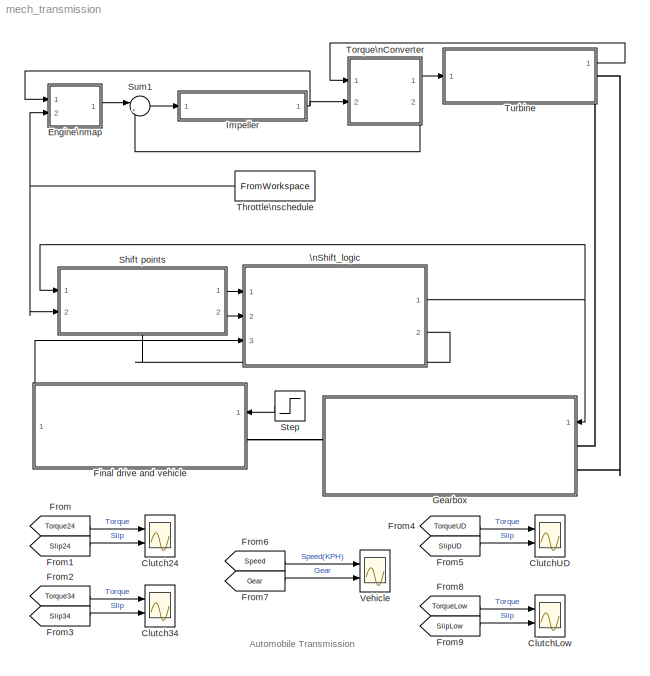
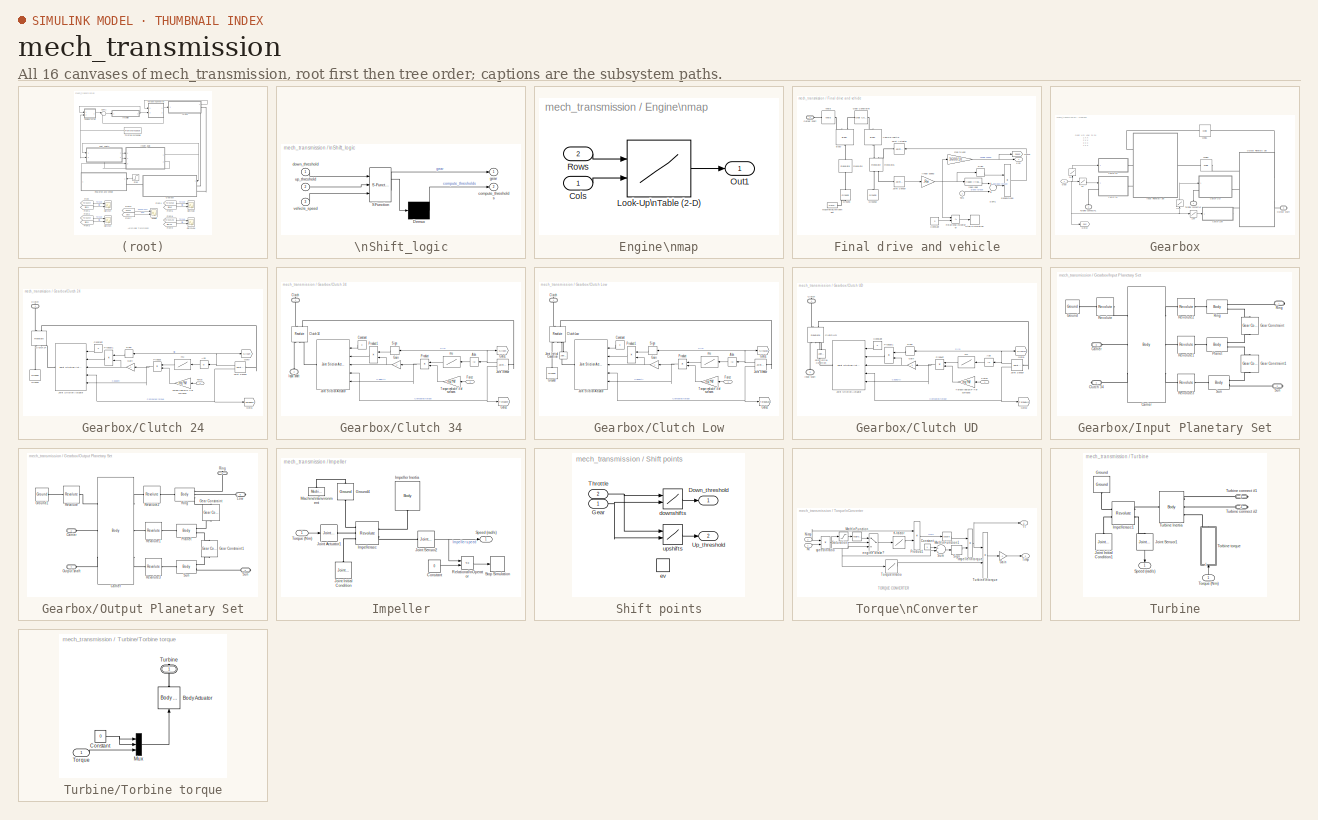
[diagram: thumbnail index - all 16 canvases of the model, root first then tree order]
MODEL mech_transmission
KIND model
CONFIG PreLoadFcn = load mech_transmission_data;
BLOCK [Scope] Clutch24
  DataFormat = StructureWithTime
  NumInputPorts = 2
  Ports = [2]
  TimeRange = 100
  YMax = 1000~500
  YMin = -1000~-500
BLOCK [Scope] Clutch34
  DataFormat = StructureWithTime
  NumInputPorts = 2
  Ports = [2]
  SaveName = ScopeData2
  TimeRange = 100
  YMax = 1000~200
  YMin = -1000~-400
BLOCK [Scope] ClutchLow
  DataFormat = StructureWithTime
  NumInputPorts = 2
  Ports = [2]
  SaveName = ScopeData4
  TimeRange = 100
  YMax = 500~600
  YMin = -1000~0
BLOCK [Scope] ClutchUD
  DataFormat = StructureWithTime
  NumInputPorts = 2
  Ports = [2]
  SaveName = ScopeData3
  TimeRange = 100
  YMax = 1000~400
  YMin = -1000~-200
BLOCK [SubSystem] Engine\nmap
  AncestorBlock = simulink3/Functions\n& Tables/Look-Up\nTable (2-D)
  MaskCallbackString = ||
  MaskDescription = Performs 2-D linear interpolation of input values using the specified input/output table.  Extrapolation is performed outside the table boundaries.  The first dimension corresponds to the top (or left) input port.
  MaskDisplay = plot(double(xi),double(t),double([minx maxx]),double([mint mint]),double([minx minx]),double([mint maxt]))
  MaskEnableString = on,on,on
  MaskIconFrame = on
  MaskIconOpaque = on
  MaskIconRotate = none
  MaskIconUnits = autoscale
  MaskInitialization = [r,c]=size(t);\nxt=reshape(x,prod(size(x)),1);\nxi=xt(:,ones(1,c));\nminx=min(x); maxx=max(x);\nmint=min(min(t)); maxt=max(max(t));\n
  MaskPromptString = Row:|Column:|Table:
  MaskStyleString = edit,edit,edit
  MaskTabNameString = ,,
  MaskToolTipString = on,on,on
  MaskTunableValueString = on,on,on
  MaskType = Lookup Table (2-D)
  MaskValueString = thvec|radvec|emap
  MaskVarAliasString = ,,
  MaskVariables = x=@1;y=@2;t=@3;
  MaskVisibilityString = on,on,on
  MinAlgLoopOccurrences = off
  Ports = [2, 1]
  RTWSystemCode = Auto
  TreatAsAtomicUnit = off
BLOCK [Inport] Engine\nmap/Cols
  IconDisplay = Port number
  LatchInput = off
  Port = 1
BLOCK [Lookup2D] Engine\nmap/Look-Up\nTable (2-D)
  ColumnIndex = y
  DialogController = Simulink.DDGSource
  OutputValues = t
  RowIndex = x
BLOCK [Outport] Engine\nmap/Out1
  BusOutputAsStruct = off
  IconDisplay = Port number
BLOCK [Inport] Engine\nmap/Rows
  IconDisplay = Port number
  LatchInput = off
  Port = 2
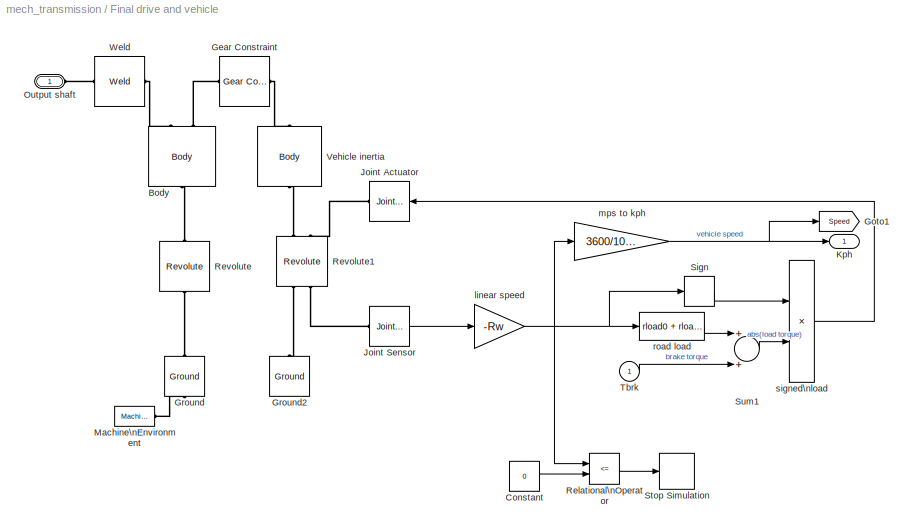
BLOCK [SubSystem] Final drive and vehicle
  MaskCallbackString = |||||
  MaskDescription = vehicle dynamics: torque input from trans., outputs are input speed (transmission output) and vehicle speed
  MaskDisplay = plot(-2,1,11,8,9-[cos(pi*[0:5:360]/180) + 6], [sin(pi*[0:5:360]/180) + 1.5],9-[cos(pi*[0:5:360]/180) + 1], [sin(pi*[0:5:360]/180) + 4],9- [10 7.5 6.75], [3.5 1 1.5], 9-[10 9.75 7.5 6.25 3 1.5 4 5 7.5], [3.5 4.75 5.5 7 8 7 6 4 5.5], 9-[6.5 4], [7 6],9- [5.25 2], [2 4],9- [7.5 1 0], [2.5 6 6.5],9- [7.5 7.25 9.75], [1 2.25 4.75],9- [2.75 2 0 0 0.25], [7.5 8 6.5 5.25 5],9- [1.5 0.5], [6.75 6.25])
  MaskEnableString = on,on,on,on,on,on
  MaskIconFrame = on
  MaskIconOpaque = off
  MaskIconRotate = port
  MaskIconUnits = autoscale
  MaskPromptString = Final drive ratio | Drag friction at wheels | Aerodynamic drag | Wheel radius | Vehicle inertia | Initial transmission output speed
  MaskStyleString = edit,edit,edit,edit,edit,edit
  MaskTabNameString = ,,,,,
  MaskToolTipString = on,on,on,on,on,on
  MaskTunableValueString = on,on,on,on,on,on
  MaskType = vehicle model
  MaskValueString = vehicledata(1)|vehicledata(2)|vehicledata(3)|vehicledata(4)|vehicledata(5)|vehicledata(6)/vehicledata(4)*vehicledata(1)
  MaskVarAliasString = ,,,,,
  MaskVariables = Rfd=@1;rload0=@2;rload2=@3;Rw=@4;inertiav=@5;N20=@6;
  MaskVisibilityString = on,on,on,on,on,on
  MinAlgLoopOccurrences = off
  Ports = [1, 1, 0, 0, 0, 1]
  RTWSystemCode = Auto
  TreatAsAtomicUnit = off
BLOCK [Reference] Final drive and vehicle/Body  REF=mblibv1/Bodies/Body
  CG = Left$CG$[0 0 0]$WORLD$WORLD$m$[0 0 0]$Euler X-Y-Z$deg$WORLD$false
  ClassName = Body
  Density = 1
  DensityUnits = kg/m^3
  DensityUse = false
  Description = Mechanical Blockset
  DialogClass = MechanicalBodyBlock
  Inertia = diag([0 0 1e-4])
  InertiaUnits = kg*m^2
  LConnTagsString = CS1|CS3
  LeftPortType = workingframe
  Mass = 0
  MassUnits = kg
  PhysicalDomain = mechanical
  Ports = [0, 0, 0, 0, 0, 2, 1]
  RConnTagsString = CS2
  RightPortType = workingframe
  Shape = Cylinder
  ShapeDims = [1 1]
  ShapeUnits = m
  ShapeUse = false
  SourceBlock = mblibv1/Bodies/Body
  SourceType = msb
  SubClassName = Unknown
  Tag = Factory generic
  WorkingFrames = Left$CS1$[0 0 0]$CG$CG$m$[0 0 0]$Euler X-Y-Z$deg$WORLD$true#Left$CS3$[0 0 0]$CG$CG$m$[0 0 0]$Euler X-Y-Z$deg$WORLD$true#Right$CS2$[0 0 0]$CG$CG$m$[0 0 0]$Euler X-Y-Z$deg$WORLD$true
BLOCK [Constant] Final drive and vehicle/Constant
  Value = 0
BLOCK [Reference] Final drive and vehicle/Gear Constraint  REF=mblibv1/Constraints & \nDrivers/Gear Constraint
  BaseRadius = Rfd
  BaseRadiusUnits = m
  ClassName = GearConstraint
  Description = Mechanical Blockset
  DialogClass = GearConstraint
  FollowerRadius = 1
  FollowerRadiusUnits = m
  LConnTagsString = __newl0
  LeftPortType = blob
  NumSAPorts = 0
  PhysicalDomain = mechanical
  Ports = [0, 0, 0, 0, 0, 1, 1]
  RConnTagsString = __newr0
  RightPortType = blob
  SourceBlock = mblibv1/Constraints & \nDrivers/Gear Constraint
  SourceType = GearConstraint
  SubClassName = Unknown
  Tag = Factory generic
BLOCK [Goto] Final drive and vehicle/Goto1
  DialogController = Simulink.DDGSource
  GotoTag = Speed
  TagVisibility = global
BLOCK [Reference] Final drive and vehicle/Ground  REF=mblibv1/Bodies/Ground
  ClassName = Ground
  CoordPosition = [0 0 0]
  CoordPositionUnits = m
  DialogClass = GroundBlock
  LeftPortType = env
  MachineId = [0 0]
  Opaque = on
  PhysicalDomain = Mechanical
  Ports = [0, 0, 0, 0, 0, 1, 1]
  RightPortType = workingframe
  ShowEnvPort = on
  ShowPortLabels = on
  SourceBlock = mblibv1/Bodies/Ground
  SourceType = msb
  StateVectorMgrId = -1
  UserData = DataTag0
  UserDataPersistent = on
BLOCK [Reference] Final drive and vehicle/Ground2  REF=mblibv1/Bodies/Ground
  ClassName = Ground
  CoordPosition = [1+Rfd 0 0]
  CoordPositionUnits = m
  DialogClass = GroundBlock
  LeftPortType = env
  MachineId = [0 0]
  Opaque = on
  PhysicalDomain = Mechanical
  Ports = [0, 0, 0, 0, 0, 0, 1]
  RightPortType = workingframe
  ShowEnvPort = off
  ShowPortLabels = on
  SourceBlock = mblibv1/Bodies/Ground
  SourceType = msb
  StateVectorMgrId = -1
  UserData = DataTag1
  UserDataPersistent = on
BLOCK [Reference] Final drive and vehicle/Joint Actuator  REF=mblibv1/Sensors & \nActuators/Joint Actuator
  AccelerationUnits = m/s^2
  ActiveIO = on
  ActuationStyle = Force
  AngleUnits = deg
  ArcAccelerationUnits = deg/s^2
  ArcVelocityUnits = deg/s
  ClassName = JointActuator
  CoordPositionUnits = m
  Description = Mechanical Blockset
  DialogClass = MechanicalActuatorBlock
  ForceUnits = N
  Opaque = on
  PhysicalDomain = Mechanical
  PortType = blob
  Ports = [1, 0, 0, 0, 0, 0, 1]
  Primitive = R1
  ReferenceFrame = Absolute (INERTIAL)
  ShowPortLabels = on
  SourceBlock = mblibv1/Sensors & \nActuators/Joint Actuator
  SourceType = msb
  TorqueUnits = N-m
  VelocityUnits = m/s
  Width = 1
BLOCK [Reference] Final drive and vehicle/Joint Sensor  REF=mblibv1/Sensors & \nActuators/Joint Sensor
  Acceleration = off
  AccelerationUnits = m/s^2
  ActiveIO = on
  Angle = off
  AngleUnits = deg
  ArcAcceleration = off
  ArcAccelerationUnits = deg/s^2
  ArcVelocity = on
  ArcVelocityUnits = rad/s
  ClassName = JointSensor
  CoordPosition = on
  CoordPositionUnits = m
  Description = Mechanical Blockset
  DialogClass = MechanicalSensorBlock
  Force = off
  ForceUnits = N
  Muxed = on
  Opaque = on
  OutputVector = [ 1 ]
  PhysicalDomain = Mechanical
  PortType = blob
  Ports = [0, 1, 0, 0, 0, 1]
  Pose = off
  Primitive = R1
  Quaternion = on
  QuaternionDDT = off
  QuaternionDT = off
  QuaternionUnits = off
  ReactionForce = off
  ReactionForceUnits = N
  ReactionMoment = off
  ReactionMomentUnits = N-m
  ReactionReferenceFrame = Absolute (World)
  ReactionSensedSide = Base
  ReferenceFrame = Absolute (INERTIAL)
  ShowPortLabels = on
  SourceBlock = mblibv1/Sensors & \nActuators/Joint Sensor
  SourceType = msb
  Torque = off
  TorqueUnits = N-m
  Velocity = off
  VelocityUnits = m/s
  Width = 1
BLOCK [Outport] Final drive and vehicle/Kph
  BusOutputAsStruct = off
  IconDisplay = Port number
BLOCK [Reference] Final drive and vehicle/Machine\nEnvironment  REF=mblibv1/Bodies/Machine\nEnvironment
  AnalysisType = Forward dynamics
  AngularAssemblyTolerance = 1e-3
  AngularAssemblyToleranceUnits = rad
  ClassName = Environment
  ConstraintAbsTolerance = 1e-4
  ConstraintRelTolerance = 1e-4
  ConstraintSolverType = Machine precision
  DialogController = MECH.DialogSource
  DialogTemplateClass = MECH.MachineEnvironment
  Dimensionality = 3D Only
  Gravity = [0 -9.81 0]
  GravityAsSignal = off
  GravityUnits = m/s^2
  LinearAssemblyTolerance = 1e-3
  LinearAssemblyToleranceUnits = m
  Opaque = on
  PerturbationSize = 1e-5
  PhysicalDomain = Mechanical
  PortType = env
  Ports = [0, 0, 0, 0, 0, 0, 1]
  ShowPortLabels = on
  SourceBlock = mblibv1/Bodies/Machine\nEnvironment
  SourceType = Mechanical
  StatePerturbationType = Fixed
  SyncWhenCopied = off
  Tag = Factory ground
  UseRobustSingularityHandling = off
  VisualizeMachine = on
BLOCK [PMIOPort] Final drive and vehicle/Output shaft
  Port = 1
  Side = Left
BLOCK [RelationalOperator] Final drive and vehicle/Relational\nOperator
  InputSameDT = off
  Operator = <=
BLOCK [Reference] Final drive and vehicle/Revolute  REF=mblibv1/Joints/Revolute
  ClassName = Joint
  CutJoint = off
  DialogClass = JointBlock
  LConnTagsString = __newl0
  LeftPortType = blob
  MarkAsCut = off
  NumSAPorts = 0
  PhysicalDomain = mechanical
  Ports = [0, 0, 0, 0, 0, 1, 1]
  PrimitiveProps = R1$INERTIAL$[0 0 1]$revolute
  Primitives = revolute
  RConnTagsString = __newr0
  RightPortType = blob
  SourceBlock = mblibv1/Joints/Revolute
  SourceType = msb
  SubClassName = Unknown
BLOCK [Reference] Final drive and vehicle/Revolute1  REF=mblibv1/Joints/Revolute
  ClassName = Joint
  CutJoint = off
  DialogClass = JointBlock
  LConnTagsString = __newl0|SA1
  LeftPortType = blob
  MarkAsCut = off
  NumSAPorts = 2
  PhysicalDomain = mechanical
  Ports = [0, 0, 0, 0, 0, 2, 2]
  PrimitiveProps = R1$WORLD$[0 0 1]$revolute
  Primitives = revolute
  RConnTagsString = __newr0|SA1
  RightPortType = blob
  SourceBlock = mblibv1/Joints/Revolute
  SourceType = msb
  SubClassName = Unknown
BLOCK [Signum] Final drive and vehicle/Sign
  ZeroCross = off
BLOCK [Stop] Final drive and vehicle/Stop Simulation
BLOCK [Sum] Final drive and vehicle/Sum1
  Ports = [2, 1]
BLOCK [Inport] Final drive and vehicle/Tbrk
  IconDisplay = Port number
  LatchInput = off
  Port = 1
BLOCK [Reference] Final drive and vehicle/Vehicle inertia  REF=mblibv1/Bodies/Body
  CG = Left$CG$[1+Rfd 0 0]$WORLD$WORLD$m$[0 0 0]$Euler X-Y-Z$deg$WORLD$false
  ClassName = Body
  Density = 1
  DensityUnits = kg/m^3
  DensityUse = false
  Description = Mechanical Blockset
  DialogClass = MechanicalBodyBlock
  Inertia = diag([0 0 inertiav])
  InertiaUnits = kg*m^2
  LConnTagsString = CS1
  LeftPortType = workingframe
  Mass = 0
  MassUnits = kg
  PhysicalDomain = mechanical
  Ports = [0, 0, 0, 0, 0, 1, 1]
  RConnTagsString = CS2
  RightPortType = workingframe
  Shape = Cylinder
  ShapeDims = [1 1]
  ShapeUnits = m
  ShapeUse = false
  SourceBlock = mblibv1/Bodies/Body
  SourceType = msb
  SubClassName = Unknown
  Tag = Factory generic
  WorkingFrames = Left$CS1$[1+Rfd 0 0]$WORLD$WORLD$m$[0 0 0]$Euler X-Y-Z$deg$WORLD$true#Right$CS2$[1+Rfd 0 0]$WORLD$WORLD$m$[0 0 0]$Euler X-Y-Z$deg$WORLD$true
BLOCK [Reference] Final drive and vehicle/Weld  REF=mblibv1/Joints/Weld
  ClassName = Joint
  CutJoint = off
  DialogClass = JointBlock
  LConnTagsString = __newl0
  LeftPortType = blob
  MarkAsCut = off
  NumSAPorts = 0
  PhysicalDomain = mechanical
  Ports = [0, 0, 0, 0, 0, 1, 1]
  PrimitiveProps = W$INERTIAL$[0 0 0]$weld
  Primitives = weld
  RConnTagsString = __newr0
  RightPortType = blob
  SourceBlock = mblibv1/Joints/Weld
  SourceType = msb
  SubClassName = Unknown
BLOCK [Gain] Final drive and vehicle/linear speed
  Gain = -Rw
BLOCK [Gain] Final drive and vehicle/mps to kph
  Gain = 3600/1000
BLOCK [Fcn] Final drive and vehicle/road load
  Expr = rload0 + rload2*u^2
BLOCK [Product] Final drive and vehicle/signed\nload
  Ports = [2, 1]
  RndMeth = Floor
BLOCK [From] From
  CloseFcn = tagdialog Close
  DialogController = Simulink.DDGSource
  GotoTag = Torque24
BLOCK [From] From1
  CloseFcn = tagdialog Close
  DialogController = Simulink.DDGSource
  GotoTag = Slip24
BLOCK [From] From2
  CloseFcn = tagdialog Close
  DialogController = Simulink.DDGSource
  GotoTag = Torque34
BLOCK [From] From3
  CloseFcn = tagdialog Close
  DialogController = Simulink.DDGSource
  GotoTag = Slip34
BLOCK [From] From4
  CloseFcn = tagdialog Close
  DialogController = Simulink.DDGSource
  GotoTag = TorqueUD
BLOCK [From] From5
  CloseFcn = tagdialog Close
  DialogController = Simulink.DDGSource
  GotoTag = SlipUD
BLOCK [From] From6
  CloseFcn = tagdialog Close
  DialogController = Simulink.DDGSource
  GotoTag = Speed
BLOCK [From] From7
  CloseFcn = tagdialog Close
  DialogController = Simulink.DDGSource
  GotoTag = Gear
BLOCK [From] From8
  CloseFcn = tagdialog Close
  DialogController = Simulink.DDGSource
  GotoTag = TorqueLow
BLOCK [From] From9
  CloseFcn = tagdialog Close
  DialogController = Simulink.DDGSource
  GotoTag = SlipLow
BLOCK [SubSystem] Gearbox
  MaskDisplay = plot(-5,-5,5,10,cos(0:.1:7),sin(0:.1:7),1.5*cos(0:.1:7),1.5*sin(0:.1:7)+3,[1.5 1],[3 0],[-1.5 -1],[3 0],0.5*cos(0:.1:7),0.5*sin(0:.1:7),cos(0:.1:7),sin(0:.1:7)+3)
  MaskIconFrame = on
  MaskIconOpaque = off
  MaskIconRotate = none
  MaskIconUnits = autoscale
  MinAlgLoopOccurrences = off
  Ports = [1, 0, 0, 0, 0, 2, 1]
  RTWSystemCode = Auto
  TreatAsAtomicUnit = off
BLOCK [Lookup] Gearbox/24
  DialogController = Simulink.DDGSource
  InputValues = [1 2 3 4]
  OutputValues = [0 1 0 1]*10e3
BLOCK [Lookup] Gearbox/34
  DialogController = Simulink.DDGSource
  InputValues = [1 2 3 4]
  OutputValues = [0 0 1 1]*10e3
BLOCK [SubSystem] Gearbox/Clutch 24
  MaskCallbackString = ||
  MaskDisplay = plot(-1,-2,6,8,[0 3],[3 3],[3 1 1 3], [1 1 5 5],[2 4 4 2],[4 4 2 2],[4 5],[3 3])
  MaskEnableString = on,on,on
  MaskIconFrame = on
  MaskIconOpaque = off
  MaskIconRotate = none
  MaskIconUnits = autoscale
  MaskPromptString = Effective torque radius|Coefficient of friction table|Number of friction surfaces
  MaskStyleString = edit,edit,edit
  MaskTabNameString = ,,
  MaskToolTipString = on,on,on
  MaskTunableValueString = on,on,on
  MaskValueString = 2/3*(r2^3 - r1^3)/(r2^2 - r1^2)|mutable|Nf
  MaskVarAliasString = ,,
  MaskVariables = rtq=@1;mutable=@2;Nf=@3;
  MaskVisibilityString = on,on,on
  MinAlgLoopOccurrences = off
  Ports = [1, 0, 0, 0, 0, 0, 1]
  RTWSystemCode = Auto
  TreatAsAtomicUnit = off
BLOCK [Abs] Gearbox/Clutch 24/Abs
  ZeroCross = off
BLOCK [PMIOPort] Gearbox/Clutch 24/Clutch
  Port = 1
  Side = Right
BLOCK [Reference] Gearbox/Clutch 24/Clutch 24  REF=mblibv1/Joints/Revolute
  ClassName = Joint
  CutJoint = on
  Description = Mechanical Blockset
  DialogClass = JointBlock
  LConnTagsString = __newl0|SA1
  LeftPortType = blob
  MarkAsCut = off
  NumSAPorts = 2
  PhysicalDomain = mechanical
  Ports = [0, 0, 0, 0, 0, 2, 2]
  PrimitiveProps = R1$WORLD$[0 0 1]$revolute
  Primitives = revolute
  RConnTagsString = __newr0|SA1
  RightPortType = blob
  SourceBlock = mblibv1/Joints/Revolute
  SourceType = msb
  SubClassName = Unknown
  Tag = Factory generic
BLOCK [Constant] Gearbox/Clutch 24/Constant
  Value = 0
BLOCK [Inport] Gearbox/Clutch 24/Force
  IconDisplay = Port number
  LatchInput = off
  Port = 1
BLOCK [Gain] Gearbox/Clutch 24/Gain
  Gain = -1
BLOCK [Goto] Gearbox/Clutch 24/Goto
  DialogController = Simulink.DDGSource
  GotoTag = Slip24
  TagVisibility = global
BLOCK [Goto] Gearbox/Clutch 24/Goto1
  DialogController = Simulink.DDGSource
  GotoTag = Torque24
  TagVisibility = global
BLOCK [Reference] Gearbox/Clutch 24/Ground  REF=mblibv1/Bodies/Ground
  ClassName = Ground
  CoordPosition = [0 0 0]
  CoordPositionUnits = m
  DialogClass = GroundBlock
  LeftPortType = env
  MachineId = [0 0]
  Opaque = on
  PhysicalDomain = Mechanical
  Ports = [0, 0, 0, 0, 0, 0, 1]
  RightPortType = workingframe
  ShowEnvPort = off
  ShowPortLabels = on
  SourceBlock = mblibv1/Bodies/Ground
  SourceType = msb
  StateVectorMgrId = -1
  UserData = DataTag2
  UserDataPersistent = on
BLOCK [Reference] Gearbox/Clutch 24/Joint Sensor  REF=mblibv1/Sensors & \nActuators/Joint Sensor
  Acceleration = off
  AccelerationUnits = m/s^2
  ActiveIO = on
  Angle = off
  AngleUnits = deg
  ArcAcceleration = off
  ArcAccelerationUnits = deg/s^2
  ArcVelocity = on
  ArcVelocityUnits = rad/s
  ClassName = JointSensor
  CoordPosition = on
  CoordPositionUnits = m
  Description = Mechanical Blockset
  DialogClass = MechanicalSensorBlock
  Force = off
  ForceUnits = N
  Muxed = off
  Opaque = on
  OutputVector = [ 1 1 ]
  PhysicalDomain = Mechanical
  PortType = blob
  Ports = [0, 2, 0, 0, 0, 1]
  Pose = off
  Primitive = R1
  Quaternion = on
  QuaternionDDT = off
  QuaternionDT = off
  QuaternionUnits = off
  ReactionForce = off
  ReactionForceUnits = N
  ReactionMoment = off
  ReactionMomentUnits = N-m
  ReactionReferenceFrame = Absolute (World)
  ReactionSensedSide = Base
  ReferenceFrame = Absolute (INERTIAL)
  ShowPortLabels = on
  SourceBlock = mblibv1/Sensors & \nActuators/Joint Sensor
  SourceType = msb
  Torque = on
  TorqueUnits = N-m
  Velocity = off
  VelocityUnits = m/s
  Width = 2
BLOCK [Reference] Gearbox/Clutch 24/Joint Stiction Actuator  REF=mblibv1/Sensors & \nActuators/Joint Stiction Actuator
  AccelerationUnits = m/s^2
  ActiveIO = on
  ActuationStyle = Force
  AngleUnits = deg
  ArcAccelerationUnits = deg/s^2
  ArcVelocityUnits = deg/s
  ClassName = JointStictionActuator
  CoordPositionUnits = m
  Description = Mechanical Blockset
  DialogClass = EventActuatorBlock
  ExternalForceUnits = N-m
  ExternalTorqueUnits = N-m
  ForceUnits = N
  FrictionalForceUnits = N-m
  FrictionalTorqueUnits = N-m
  LockingTolerance = 1e-3
  Opaque = on
  PhysicalDomain = Mechanical
  PortType = blob
  Ports = [5, 0, 0, 0, 0, 0, 1]
  Primitive = R1
  ShowPortLabels = on
  SourceBlock = mblibv1/Sensors & \nActuators/Joint Stiction Actuator
  SourceType = msb
  TorqueUnits = N-m
  VelocityUnits = m/s
  Width = 5
BLOCK [Product] Gearbox/Clutch 24/Product
  Ports = [2, 1]
  RndMeth = Floor
BLOCK [Product] Gearbox/Clutch 24/Product1
  Ports = [2, 1]
  RndMeth = Floor
BLOCK [Signum] Gearbox/Clutch 24/Sign
BLOCK [Gain] Gearbox/Clutch 24/Torque radius\n* # of surfaces
  Gain = rtq*Nf
BLOCK [Lookup] Gearbox/Clutch 24/mu
  DialogController = Simulink.DDGSource
  InputValues = mutable(:,1)
  OutputValues = mutable(:,2)
BLOCK [SubSystem] Gearbox/Clutch 34
  MaskCallbackString = ||
  MaskDisplay = plot(-1,-2,6,8,[0 3],[3 3],[3 1 1 3], [1 1 5 5],[2 4 4 2],[4 4 2 2],[4 5],[3 3])
  MaskEnableString = on,on,on
  MaskIconFrame = on
  MaskIconOpaque = off
  MaskIconRotate = none
  MaskIconUnits = autoscale
  MaskPromptString = Effective torque radius|Coefficient of friction table|Number of friction surfaces
  MaskStyleString = edit,edit,edit
  MaskTabNameString = ,,
  MaskToolTipString = on,on,on
  MaskTunableValueString = on,on,on
  MaskValueString = 2/3*(r2^3 - r1^3)/(r2^2 - r1^2)|mutable|Nf
  MaskVarAliasString = ,,
  MaskVariables = rtq=@1;mutable=@2;Nf=@3;
  MaskVisibilityString = on,on,on
  MinAlgLoopOccurrences = off
  Ports = [1, 0, 0, 0, 0, 1, 1]
  RTWSystemCode = Auto
  TreatAsAtomicUnit = off
BLOCK [Abs] Gearbox/Clutch 34/Abs
  ZeroCross = off
BLOCK [PMIOPort] Gearbox/Clutch 34/Clutch
  Port = 1
  Side = Right
BLOCK [Reference] Gearbox/Clutch 34/Clutch 34  REF=mblibv1/Joints/Revolute
  ClassName = Joint
  CutJoint = on
  Description = Mechanical Blockset
  DialogClass = JointBlock
  LConnTagsString = __newl0|SA1|SA2
  LeftPortType = blob
  MarkAsCut = off
  NumSAPorts = 3
  PhysicalDomain = mechanical
  Ports = [0, 0, 0, 0, 0, 3, 2]
  PrimitiveProps = R1$WORLD$[0 0 1]$revolute
  Primitives = revolute
  RConnTagsString = __newr0|SA1
  RightPortType = blob
  SourceBlock = mblibv1/Joints/Revolute
  SourceType = msb
  SubClassName = Unknown
  Tag = Factory generic
BLOCK [Constant] Gearbox/Clutch 34/Constant
  Value = 0
BLOCK [Inport] Gearbox/Clutch 34/Force
  IconDisplay = Port number
  LatchInput = off
  Port = 1
BLOCK [Gain] Gearbox/Clutch 34/Gain
  Gain = -1
BLOCK [Goto] Gearbox/Clutch 34/Goto1
  DialogController = Simulink.DDGSource
  GotoTag = Slip34
  TagVisibility = global
BLOCK [Goto] Gearbox/Clutch 34/Goto2
  DialogController = Simulink.DDGSource
  GotoTag = Torque34
  TagVisibility = global
BLOCK [PMIOPort] Gearbox/Clutch 34/Input shaft
  Port = 2
  Side = Left
BLOCK [Reference] Gearbox/Clutch 34/Joint Sensor  REF=mblibv1/Sensors & \nActuators/Joint Sensor
  Acceleration = off
  AccelerationUnits = m/s^2
  ActiveIO = on
  Angle = off
  AngleUnits = deg
  ArcAcceleration = off
  ArcAccelerationUnits = deg/s^2
  ArcVelocity = on
  ArcVelocityUnits = rad/s
  ClassName = JointSensor
  CoordPosition = on
  CoordPositionUnits = m
  Description = Mechanical Blockset
  DialogClass = MechanicalSensorBlock
  Force = off
  ForceUnits = N
  Muxed = off
  Opaque = on
  OutputVector = [ 1 1 ]
  PhysicalDomain = Mechanical
  PortType = blob
  Ports = [0, 2, 0, 0, 0, 1]
  Pose = off
  Primitive = R1
  Quaternion = on
  QuaternionDDT = off
  QuaternionDT = off
  QuaternionUnits = off
  ReactionForce = off
  ReactionForceUnits = N
  ReactionMoment = off
  ReactionMomentUnits = N-m
  ReactionReferenceFrame = Absolute (World)
  ReactionSensedSide = Base
  ReferenceFrame = Absolute (INERTIAL)
  ShowPortLabels = on
  SourceBlock = mblibv1/Sensors & \nActuators/Joint Sensor
  SourceType = msb
  Torque = on
  TorqueUnits = N-m
  Velocity = off
  VelocityUnits = m/s
  Width = 2
BLOCK [Reference] Gearbox/Clutch 34/Joint Stiction Actuator  REF=mblibv1/Sensors & \nActuators/Joint Stiction Actuator
  AccelerationUnits = m/s^2
  ActiveIO = on
  ActuationStyle = Force
  AngleUnits = deg
  ArcAccelerationUnits = deg/s^2
  ArcVelocityUnits = deg/s
  ClassName = JointStictionActuator
  CoordPositionUnits = m
  Description = Mechanical Blockset
  DialogClass = EventActuatorBlock
  ExternalForceUnits = N-m
  ExternalTorqueUnits = N-m
  ForceUnits = N
  FrictionalForceUnits = N-m
  FrictionalTorqueUnits = N-m
  LockingTolerance = 1e-3
  Opaque = on
  PhysicalDomain = Mechanical
  PortType = blob
  Ports = [5, 0, 0, 0, 0, 0, 1]
  Primitive = R1
  ShowPortLabels = on
  SourceBlock = mblibv1/Sensors & \nActuators/Joint Stiction Actuator
  SourceType = msb
  TorqueUnits = N-m
  VelocityUnits = m/s
  Width = 5
BLOCK [Product] Gearbox/Clutch 34/Product
  Ports = [2, 1]
  RndMeth = Floor
BLOCK [Product] Gearbox/Clutch 34/Product1
  Ports = [2, 1]
  RndMeth = Floor
BLOCK [Signum] Gearbox/Clutch 34/Sign
BLOCK [Gain] Gearbox/Clutch 34/Torque radius\n* # of surfaces
  Gain = rtq*Nf
BLOCK [Lookup] Gearbox/Clutch 34/mu
  DialogController = Simulink.DDGSource
  InputValues = mutable(:,1)
  OutputValues = mutable(:,2)
BLOCK [SubSystem] Gearbox/Clutch Low
  MaskCallbackString = ||
  MaskDisplay = plot(-1,-2,6,8,[0 3],[3 3],[3 1 1 3], [1 1 5 5],[2 4 4 2],[4 4 2 2],[4 5],[3 3])
  MaskEnableString = on,on,on
  MaskIconFrame = on
  MaskIconOpaque = off
  MaskIconRotate = none
  MaskIconUnits = autoscale
  MaskPromptString = Effective torque radius|Coefficient of friction table|Number of friction surfaces
  MaskStyleString = edit,edit,edit
  MaskTabNameString = ,,
  MaskToolTipString = on,on,on
  MaskTunableValueString = on,on,on
  MaskValueString = 2/3*(r2^3 - r1^3)/(r2^2 - r1^2)|mutable|Nf
  MaskVarAliasString = ,,
  MaskVariables = rtq=@1;mutable=@2;Nf=@3;
  MaskVisibilityString = on,on,on
  MinAlgLoopOccurrences = off
  Ports = [1, 0, 0, 0, 0, 0, 1]
  RTWSystemCode = Auto
  TreatAsAtomicUnit = off
BLOCK [Abs] Gearbox/Clutch Low/Abs
  ZeroCross = off
BLOCK [PMIOPort] Gearbox/Clutch Low/Clutch
  Port = 1
  Side = Right
BLOCK [Reference] Gearbox/Clutch Low/Clutch Low  REF=mblibv1/Joints/Revolute
  ClassName = Joint
  CutJoint = on
  Description = Mechanical Blockset
  DialogClass = JointBlock
  LConnTagsString = __newl0|SA1|SA2
  LeftPortType = blob
  MarkAsCut = off
  NumSAPorts = 3
  PhysicalDomain = mechanical
  Ports = [0, 0, 0, 0, 0, 3, 2]
  PrimitiveProps = R1$WORLD$[0 0 1]$revolute
  Primitives = revolute
  RConnTagsString = __newr0|SA1
  RightPortType = blob
  SourceBlock = mblibv1/Joints/Revolute
  SourceType = msb
  SubClassName = Unknown
  Tag = Factory generic
BLOCK [Constant] Gearbox/Clutch Low/Constant
  Value = 0
BLOCK [Inport] Gearbox/Clutch Low/Force
  IconDisplay = Port number
  LatchInput = off
  Port = 1
BLOCK [Gain] Gearbox/Clutch Low/Gain
  Gain = -1
BLOCK [Goto] Gearbox/Clutch Low/Goto1
  DialogController = Simulink.DDGSource
  GotoTag = SlipLow
  TagVisibility = global
BLOCK [Goto] Gearbox/Clutch Low/Goto2
  DialogController = Simulink.DDGSource
  GotoTag = TorqueLow
  TagVisibility = global
BLOCK [Reference] Gearbox/Clutch Low/Ground  REF=mblibv1/Bodies/Ground
  ClassName = Ground
  CoordPosition = [0 0 0]
  CoordPositionUnits = m
  DialogClass = GroundBlock
  LeftPortType = env
  MachineId = [0 0]
  Opaque = on
  PhysicalDomain = Mechanical
  Ports = [0, 0, 0, 0, 0, 0, 1]
  RightPortType = workingframe
  ShowEnvPort = off
  ShowPortLabels = on
  SourceBlock = mblibv1/Bodies/Ground
  SourceType = msb
  StateVectorMgrId = -1
  UserData = DataTag3
  UserDataPersistent = on
BLOCK [Reference] Gearbox/Clutch Low/Joint Initial Condition  REF=mblibv1/Sensors & \nActuators/Joint Initial Condition
  AngleUnits = rad
  ArcVelocityUnits = rad/s
  ClassName = InitialCondition
  CoordPosition = 0.0
  CoordPositionUnits = m
  Description = Mechanical Blockset
  DialogClass = InitialConditionBlock
  InitialConditions = P1$false$0$m$rad$0$m/s$rad/s#P2$false$0$m$rad$0$m/s$rad/s#P3$false$0$m$rad$0$m/s$rad/s#R1$true$0.0$m$rad$0.0$m/s$rad/s#R2$false$0$m$rad$0$m/s$rad/s#R3$false$0$m$rad$0$m/s$rad/s#S$false$0$m$rad$0$m/s$rad/s
  Opaque = on
  PhysicalDomain = Mechanical
  Ports = [0, 0, 0, 0, 0, 0, 1]
  Primitive = R1
  ShowPortLabels = on
  SourceBlock = mblibv1/Sensors & \nActuators/Joint Initial Condition
  SourceType = msb
  Velocity = 0.0
  VelocityUnits = m/s
BLOCK [Reference] Gearbox/Clutch Low/Joint Sensor  REF=mblibv1/Sensors & \nActuators/Joint Sensor
  Acceleration = off
  AccelerationUnits = m/s^2
  ActiveIO = on
  Angle = off
  AngleUnits = deg
  ArcAcceleration = off
  ArcAccelerationUnits = deg/s^2
  ArcVelocity = on
  ArcVelocityUnits = rad/s
  ClassName = JointSensor
  CoordPosition = on
  CoordPositionUnits = m
  Description = Mechanical Blockset
  DialogClass = MechanicalSensorBlock
  Force = off
  ForceUnits = N
  Muxed = off
  Opaque = on
  OutputVector = [ 1 1 ]
  PhysicalDomain = Mechanical
  PortType = blob
  Ports = [0, 2, 0, 0, 0, 1]
  Pose = off
  Primitive = R1
  Quaternion = on
  QuaternionDDT = off
  QuaternionDT = off
  QuaternionUnits = off
  ReactionForce = off
  ReactionForceUnits = N
  ReactionMoment = off
  ReactionMomentUnits = N-m
  ReactionReferenceFrame = Absolute (World)
  ReactionSensedSide = Base
  ReferenceFrame = Absolute (INERTIAL)
  ShowPortLabels = on
  SourceBlock = mblibv1/Sensors & \nActuators/Joint Sensor
  SourceType = msb
  Torque = on
  TorqueUnits = N-m
  Velocity = off
  VelocityUnits = m/s
  Width = 2
BLOCK [Reference] Gearbox/Clutch Low/Joint Stiction Actuator  REF=mblibv1/Sensors & \nActuators/Joint Stiction Actuator
  AccelerationUnits = m/s^2
  ActiveIO = on
  ActuationStyle = Force
  AngleUnits = deg
  ArcAccelerationUnits = deg/s^2
  ArcVelocityUnits = deg/s
  ClassName = JointStictionActuator
  CoordPositionUnits = m
  Description = Mechanical Blockset
  DialogClass = EventActuatorBlock
  ExternalForceUnits = N-m
  ExternalTorqueUnits = N-m
  ForceUnits = N
  FrictionalForceUnits = N-m
  FrictionalTorqueUnits = N-m
  LockingTolerance = 1e-3
  Opaque = on
  PhysicalDomain = Mechanical
  PortType = blob
  Ports = [5, 0, 0, 0, 0, 0, 1]
  Primitive = R1
  ShowPortLabels = on
  SourceBlock = mblibv1/Sensors & \nActuators/Joint Stiction Actuator
  SourceType = msb
  TorqueUnits = N-m
  VelocityUnits = m/s
  Width = 5
BLOCK [Product] Gearbox/Clutch Low/Product
  Ports = [2, 1]
  RndMeth = Floor
BLOCK [Product] Gearbox/Clutch Low/Product1
  Ports = [2, 1]
  RndMeth = Floor
BLOCK [Signum] Gearbox/Clutch Low/Sign
BLOCK [Gain] Gearbox/Clutch Low/Torque radius\n* # of surfaces
  Gain = rtq*Nf
BLOCK [Lookup] Gearbox/Clutch Low/mu
  DialogController = Simulink.DDGSource
  InputValues = mutable(:,1)
  OutputValues = mutable(:,2)
BLOCK [SubSystem] Gearbox/Clutch UD
  MaskCallbackString = ||
  MaskDisplay = plot(-1,-2,6,8,[0 3],[3 3],[3 1 1 3], [1 1 5 5],[2 4 4 2],[4 4 2 2],[4 5],[3 3])
  MaskEnableString = on,on,on
  MaskIconFrame = on
  MaskIconOpaque = off
  MaskIconRotate = none
  MaskIconUnits = autoscale
  MaskPromptString = Effective torque radius|Coefficient of friction table|Number of friction surfaces
  MaskStyleString = edit,edit,edit
  MaskTabNameString = ,,
  MaskToolTipString = on,on,on
  MaskTunableValueString = on,on,on
  MaskValueString = 2/3*(r2^3 - r1^3)/(r2^2 - r1^2)|mutable|Nf
  MaskVarAliasString = ,,
  MaskVariables = rtq=@1;mutable=@2;Nf=@3;
  MaskVisibilityString = on,on,on
  MinAlgLoopOccurrences = off
  Ports = [1, 0, 0, 0, 0, 1, 1]
  RTWSystemCode = Auto
  TreatAsAtomicUnit = off
BLOCK [Abs] Gearbox/Clutch UD/Abs
  ZeroCross = off
BLOCK [PMIOPort] Gearbox/Clutch UD/Clutch
  Port = 1
  Side = Right
BLOCK [Reference] Gearbox/Clutch UD/Clutch UD  REF=mblibv1/Joints/Revolute
  ClassName = Joint
  CutJoint = on
  Description = Mechanical Blockset
  DialogClass = JointBlock
  LConnTagsString = __newl0|SA1|SA2
  LeftPortType = blob
  MarkAsCut = off
  NumSAPorts = 3
  PhysicalDomain = mechanical
  Ports = [0, 0, 0, 0, 0, 3, 2]
  PrimitiveProps = R1$WORLD$[0 0 1]$revolute
  Primitives = revolute
  RConnTagsString = __newr0|SA1
  RightPortType = blob
  SourceBlock = mblibv1/Joints/Revolute
  SourceType = msb
  SubClassName = Unknown
  Tag = Factory generic
BLOCK [Constant] Gearbox/Clutch UD/Constant
  Value = 0
BLOCK [Inport] Gearbox/Clutch UD/Force
  IconDisplay = Port number
  LatchInput = off
  Port = 1
BLOCK [Gain] Gearbox/Clutch UD/Gain
  Gain = -1
BLOCK [Goto] Gearbox/Clutch UD/Goto1
  DialogController = Simulink.DDGSource
  GotoTag = SlipUD
  TagVisibility = global
BLOCK [Goto] Gearbox/Clutch UD/Goto2
  DialogController = Simulink.DDGSource
  GotoTag = TorqueUD
  TagVisibility = global
BLOCK [PMIOPort] Gearbox/Clutch UD/Input shaft
  Port = 2
  Side = Left
BLOCK [Reference] Gearbox/Clutch UD/Joint Initial Condition  REF=mblibv1/Sensors & \nActuators/Joint Initial Condition
  AngleUnits = rad
  ArcVelocityUnits = rad/s
  ClassName = InitialCondition
  CoordPosition = 0.0
  CoordPositionUnits = m
  Description = Mechanical Blockset
  DialogClass = InitialConditionBlock
  InitialConditions = P1$false$0$m$rad$0$m/s$rad/s#P2$false$0$m$rad$0$m/s$rad/s#P3$false$0$m$rad$0$m/s$rad/s#R1$true$0.0$m$rad$0.0$m/s$rad/s#R2$false$0$m$rad$0$m/s$rad/s#R3$false$0$m$rad$0$m/s$rad/s#S$false$0$m$rad$0$m/s$rad/s
  Opaque = on
  PhysicalDomain = Mechanical
  Ports = [0, 0, 0, 0, 0, 0, 1]
  Primitive = R1
  ShowPortLabels = on
  SourceBlock = mblibv1/Sensors & \nActuators/Joint Initial Condition
  SourceType = msb
  Velocity = 0.0
  VelocityUnits = m/s
BLOCK [Reference] Gearbox/Clutch UD/Joint Sensor  REF=mblibv1/Sensors & \nActuators/Joint Sensor
  Acceleration = off
  AccelerationUnits = m/s^2
  ActiveIO = on
  Angle = off
  AngleUnits = deg
  ArcAcceleration = off
  ArcAccelerationUnits = deg/s^2
  ArcVelocity = on
  ArcVelocityUnits = rad/s
  ClassName = JointSensor
  CoordPosition = on
  CoordPositionUnits = m
  Description = Mechanical Blockset
  DialogClass = MechanicalSensorBlock
  Force = off
  ForceUnits = N
  Muxed = off
  Opaque = on
  OutputVector = [ 1 1 ]
  PhysicalDomain = Mechanical
  PortType = blob
  Ports = [0, 2, 0, 0, 0, 1]
  Pose = off
  Primitive = R1
  Quaternion = on
  QuaternionDDT = off
  QuaternionDT = off
  QuaternionUnits = off
  ReactionForce = off
  ReactionForceUnits = N
  ReactionMoment = off
  ReactionMomentUnits = N-m
  ReactionReferenceFrame = Absolute (World)
  ReactionSensedSide = Base
  ReferenceFrame = Absolute (INERTIAL)
  ShowPortLabels = on
  SourceBlock = mblibv1/Sensors & \nActuators/Joint Sensor
  SourceType = msb
  Torque = on
  TorqueUnits = N-m
  Velocity = off
  VelocityUnits = m/s
  Width = 2
BLOCK [Reference] Gearbox/Clutch UD/Joint Stiction Actuator  REF=mblibv1/Sensors & \nActuators/Joint Stiction Actuator
  AccelerationUnits = m/s^2
  ActiveIO = on
  ActuationStyle = Force
  AngleUnits = deg
  ArcAccelerationUnits = deg/s^2
  ArcVelocityUnits = deg/s
  ClassName = JointStictionActuator
  CoordPositionUnits = m
  Description = Mechanical Blockset
  DialogClass = EventActuatorBlock
  ExternalForceUnits = N-m
  ExternalTorqueUnits = N-m
  ForceUnits = N
  FrictionalForceUnits = N-m
  FrictionalTorqueUnits = N-m
  LockingTolerance = 1e-3
  Opaque = on
  PhysicalDomain = Mechanical
  PortType = blob
  Ports = [5, 0, 0, 0, 0, 0, 1]
  Primitive = R1
  ShowPortLabels = on
  SourceBlock = mblibv1/Sensors & \nActuators/Joint Stiction Actuator
  SourceType = msb
  TorqueUnits = N-m
  VelocityUnits = m/s
  Width = 5
BLOCK [Product] Gearbox/Clutch UD/Product
  Ports = [2, 1]
  RndMeth = Floor
BLOCK [Product] Gearbox/Clutch UD/Product1
  Ports = [2, 1]
  RndMeth = Floor
BLOCK [Signum] Gearbox/Clutch UD/Sign
BLOCK [Gain] Gearbox/Clutch UD/Torque radius\n* # of surfaces
  Gain = rtq*Nf
BLOCK [Lookup] Gearbox/Clutch UD/mu
  DialogController = Simulink.DDGSource
  InputValues = mutable(:,1)
  OutputValues = mutable(:,2)
BLOCK [Inport] Gearbox/Gear
  IconDisplay = Port number
  LatchInput = off
  Port = 1
BLOCK [Goto] Gearbox/Goto2
  DialogController = Simulink.DDGSource
  GotoTag = Gear
  TagVisibility = global
BLOCK [SubSystem] Gearbox/Input Planetary Set
  MaskCallbackString = ||||
  MaskDisplay = plot(-2,-4,2,6,cos(0:.1:2*pi),sin(0:.1:2*pi),1.6*cos(0:.1:2*pi),1.6*sin(0:.1:2*pi),.3*cos(0:.1:2*pi)-1.3,.3*sin(0:.1:2*pi),.3*cos(0:.1:2*pi)+1.3,.3*sin(0:.1:2*pi),.3*cos(0:.1:2*pi),.3*sin(0:.1:2*pi)+1.3,.3*cos(0:.1:2*pi),.3*sin(0:.1:2*pi)-1.3)
  MaskEnableString = on,on,on,on,on
  MaskIconFrame = on
  MaskIconOpaque = off
  MaskIconRotate = none
  MaskIconUnits = autoscale
  MaskPromptString = Ring/Sun tooth ratio|Sun inertia (kg*m^2)|Ring inertia (kg*m^2)|Carrier inertia (kg*m^2)|Total planet inertia (kg*m^2)
  MaskStyleString = edit,edit,edit,edit,edit
  MaskTabNameString = ,,,,
  MaskToolTipString = on,on,on,on,on
  MaskTunableValueString = on,on,on,on,on
  MaskValueString = 2.0960|1e-4|1e-4|1e-4|1e-6
  MaskVarAliasString = ,,,,
  MaskVariables = R=@1;Is=@2;Ir=@3;Ic=@4;Ip=@5;
  MaskVisibilityString = on,on,on,on,on
  MinAlgLoopOccurrences = off
  Ports = [0, 0, 0, 0, 0, 1, 3]
  RTWSystemCode = Auto
  TreatAsAtomicUnit = off
BLOCK [Reference] Gearbox/Input Planetary Set/Carrier  REF=mblibv1/Bodies/Body
  CG = Left$CG$[0 0 0]$WORLD$WORLD$m$[0 0 0]$Euler X-Y-Z$deg$WORLD$false
  ClassName = Body
  Density = 1
  DensityUnits = kg/m^3
  DensityUse = false
  Description = Mechanical Blockset
  DialogClass = MechanicalBodyBlock
  Inertia = diag([0 0 Ic])
  InertiaUnits = kg*m^2
  LConnTagsString = CS1|CS5|CS6
  LeftPortType = workingframe
  Mass = 0
  MassUnits = kg
  PhysicalDomain = mechanical
  Ports = [0, 0, 0, 0, 0, 3, 3]
  RConnTagsString = CS2|CS3|CS4
  RightPortType = workingframe
  Shape = Cylinder
  ShapeDims = [1 1]
  ShapeUnits = m
  ShapeUse = false
  SourceBlock = mblibv1/Bodies/Body
  SourceType = msb
  SubClassName = Unknown
  Tag = Factory generic
  WorkingFrames = Left$CS1$[0 0 0]$CG$CG$m$[0 0 0]$Euler X-Y-Z$deg$WORLD$true#Left$CS5$[0 0 0]$CG$CG$m$[0 0 0]$Euler X-Y-Z$deg$WORLD$true#Left$CS6$[0 0 0]$CG$CG$m$[0 0 0]$Euler X-Y-Z$deg$WORLD$true#Right$CS2$[0 0 0]$CG$CG$m$[0 0 0]$Euler X-Y-Z$deg$WORLD$true#Right$CS3$[(1+R)/2 0 0]$CG$CG$m$[0 0 0]$Euler X-Y-Z$deg$WORLD$true#Right$CS4$[0 0 0]$CG$CG$m$[0 0 0]$Euler X-Y-Z$deg$WORLD$true
BLOCK [PMIOPort] Gearbox/Input Planetary Set/Carrier 
  Port = 3
  Side = Left
BLOCK [PMIOPort] Gearbox/Input Planetary Set/Clutch 34
  Port = 4
  Side = Right
BLOCK [Reference] Gearbox/Input Planetary Set/Gear Constraint  REF=mblibv1/Constraints & \nDrivers/Gear Constraint
  BaseRadius = R
  BaseRadiusUnits = m
  ClassName = GearConstraint
  Description = Mechanical Blockset
  DialogClass = GearConstraint
  FollowerRadius = (R-1)/2
  FollowerRadiusUnits = m
  LConnTagsString = __newl0
  LeftPortType = blob
  NumSAPorts = 0
  PhysicalDomain = mechanical
  Ports = [0, 0, 0, 0, 0, 1, 1]
  RConnTagsString = __newr0
  RightPortType = blob
  SourceBlock = mblibv1/Constraints & \nDrivers/Gear Constraint
  SourceType = GearConstraint
  SubClassName = Unknown
  Tag = Factory generic
BLOCK [Reference] Gearbox/Input Planetary Set/Gear Constraint1  REF=mblibv1/Constraints & \nDrivers/Gear Constraint
  BaseRadius = 1
  BaseRadiusUnits = m
  ClassName = GearConstraint
  Description = Mechanical Blockset
  DialogClass = GearConstraint
  FollowerRadius = (R-1)/2
  FollowerRadiusUnits = m
  LConnTagsString = __newl0
  LeftPortType = blob
  NumSAPorts = 0
  PhysicalDomain = mechanical
  Ports = [0, 0, 0, 0, 0, 1, 1]
  RConnTagsString = __newr0
  RightPortType = blob
  SourceBlock = mblibv1/Constraints & \nDrivers/Gear Constraint
  SourceType = GearConstraint
  SubClassName = Unknown
  Tag = Factory generic
BLOCK [Reference] Gearbox/Input Planetary Set/Ground  REF=mblibv1/Bodies/Ground
  ClassName = Ground
  CoordPosition = [0 0 0]
  CoordPositionUnits = m
  DialogClass = GroundBlock
  LeftPortType = env
  MachineId = [0 0]
  Opaque = on
  PhysicalDomain = Mechanical
  Ports = [0, 0, 0, 0, 0, 0, 1]
  RightPortType = workingframe
  ShowEnvPort = off
  ShowPortLabels = on
  SourceBlock = mblibv1/Bodies/Ground
  SourceType = msb
  StateVectorMgrId = -1
  UserData = DataTag4
  UserDataPersistent = on
BLOCK [Reference] Gearbox/Input Planetary Set/Planet  REF=mblibv1/Bodies/Body
  CG = Left$CG$[0 0 0]$WORLD$WORLD$m$[0 0 0]$Euler X-Y-Z$deg$WORLD$false
  ClassName = Body
  Density = 1
  DensityUnits = kg/m^3
  DensityUse = false
  Description = Mechanical Blockset
  DialogClass = MechanicalBodyBlock
  Inertia = diag([0 0 Ip])
  InertiaUnits = kg*m^2
  LConnTagsString = CS1
  LeftPortType = workingframe
  Mass = 0
  MassUnits = kg
  PhysicalDomain = mechanical
  Ports = [0, 0, 0, 0, 0, 1, 2]
  RConnTagsString = CS2|CS3
  RightPortType = workingframe
  Shape = Cylinder
  ShapeDims = [1 1]
  ShapeUnits = m
  ShapeUse = false
  SourceBlock = mblibv1/Bodies/Body
  SourceType = msb
  SubClassName = Unknown
  Tag = Factory generic
  WorkingFrames = Left$CS1$[(1+R)/2 0 0]$WORLD$WORLD$m$[0 0 0]$Euler X-Y-Z$deg$WORLD$true#Right$CS2$[0 0 0]$CS1$CS1$m$[0 0 0]$Euler X-Y-Z$deg$WORLD$true#Right$CS3$[0 0 0]$CS1$CS1$m$[0 0 0]$Euler X-Y-Z$deg$WORLD$true
BLOCK [Reference] Gearbox/Input Planetary Set/Revolute  REF=mblibv1/Joints/Revolute
  ClassName = Joint
  CutJoint = off
  Description = Mechanical Blockset
  DialogClass = JointBlock
  LConnTagsString = __newl0
  LeftPortType = blob
  MarkAsCut = off
  NumSAPorts = 0
  PhysicalDomain = mechanical
  Ports = [0, 0, 0, 0, 0, 1, 1]
  PrimitiveProps = R1$WORLD$[0 0 1]$revolute
  Primitives = revolute
  RConnTagsString = __newr0
  RightPortType = blob
  SourceBlock = mblibv1/Joints/Revolute
  SourceType = msb
  SubClassName = Unknown
  Tag = Factory generic
BLOCK [Reference] Gearbox/Input Planetary Set/Revolute1  REF=mblibv1/Joints/Revolute
  ClassName = Joint
  CutJoint = off
  Description = Mechanical Blockset
  DialogClass = JointBlock
  LConnTagsString = __newl0
  LeftPortType = blob
  MarkAsCut = off
  NumSAPorts = 0
  PhysicalDomain = mechanical
  Ports = [0, 0, 0, 0, 0, 1, 1]
  PrimitiveProps = R1$INERTIAL$[0 0 1]$revolute
  Primitives = revolute
  RConnTagsString = __newr0
  RightPortType = blob
  SourceBlock = mblibv1/Joints/Revolute
  SourceType = msb
  SubClassName = Unknown
  Tag = Factory generic
BLOCK [Reference] Gearbox/Input Planetary Set/Revolute2  REF=mblibv1/Joints/Revolute
  ClassName = Joint
  CutJoint = off
  Description = Mechanical Blockset
  DialogClass = JointBlock
  LConnTagsString = __newl0
  LeftPortType = blob
  MarkAsCut = off
  NumSAPorts = 0
  PhysicalDomain = mechanical
  Ports = [0, 0, 0, 0, 0, 1, 1]
  PrimitiveProps = R1$INERTIAL$[0 0 1]$revolute
  Primitives = revolute
  RConnTagsString = __newr0
  RightPortType = blob
  SourceBlock = mblibv1/Joints/Revolute
  SourceType = msb
  SubClassName = Unknown
  Tag = Factory generic
BLOCK [Reference] Gearbox/Input Planetary Set/Revolute3  REF=mblibv1/Joints/Revolute
  ClassName = Joint
  CutJoint = off
  Description = Mechanical Blockset
  DialogClass = JointBlock
  LConnTagsString = __newl0
  LeftPortType = blob
  MarkAsCut = off
  NumSAPorts = 0
  PhysicalDomain = mechanical
  Ports = [0, 0, 0, 0, 0, 1, 1]
  PrimitiveProps = R1$INERTIAL$[0 0 1]$revolute
  Primitives = revolute
  RConnTagsString = __newr0
  RightPortType = blob
  SourceBlock = mblibv1/Joints/Revolute
  SourceType = msb
  SubClassName = Unknown
  Tag = Factory generic
BLOCK [Reference] Gearbox/Input Planetary Set/Ring  REF=mblibv1/Bodies/Body
  CG = Left$CG$[0 0 0]$WORLD$WORLD$m$[0 0 0]$Euler X-Y-Z$deg$WORLD$false
  ClassName = Body
  Density = 1
  DensityUnits = kg/m^3
  DensityUse = false
  Description = Mechanical Blockset
  DialogClass = MechanicalBodyBlock
  Inertia = diag([0 0 Ir])
  InertiaUnits = kg*m^2
  LConnTagsString = CS1
  LeftPortType = workingframe
  Mass = 0
  MassUnits = kg
  PhysicalDomain = mechanical
  Ports = [0, 0, 0, 0, 0, 1, 2]
  RConnTagsString = CS2|CS3
  RightPortType = workingframe
  Shape = Cylinder
  ShapeDims = [1 1]
  ShapeUnits = m
  ShapeUse = false
  SourceBlock = mblibv1/Bodies/Body
  SourceType = msb
  SubClassName = Unknown
  Tag = Factory generic
  WorkingFrames = Left$CS1$[0 0 0]$CG$CG$m$[0 0 0]$Euler X-Y-Z$deg$WORLD$true#Right$CS2$[0 0 0]$CG$CG$m$[0 0 0]$Euler X-Y-Z$deg$WORLD$true#Right$CS3$[0 0 0]$CG$CG$m$[0 0 0]$Euler X-Y-Z$deg$WORLD$true
BLOCK [PMIOPort] Gearbox/Input Planetary Set/Ring 
  Port = 1
  Side = Right
BLOCK [Reference] Gearbox/Input Planetary Set/Sun  REF=mblibv1/Bodies/Body
  CG = Left$CG$[0 0 0]$WORLD$WORLD$m$[0 0 0]$Euler X-Y-Z$deg$WORLD$false
  ClassName = Body
  Density = 1
  DensityUnits = kg/m^3
  DensityUse = false
  Description = Mechanical Blockset
  DialogClass = MechanicalBodyBlock
  Inertia = diag([0 0 Is])
  InertiaUnits = kg*m^2
  LConnTagsString = CS1
  LeftPortType = workingframe
  Mass = 0
  MassUnits = kg
  PhysicalDomain = mechanical
  Ports = [0, 0, 0, 0, 0, 1, 2]
  RConnTagsString = CS2|CS3
  RightPortType = workingframe
  Shape = Cylinder
  ShapeDims = [1 1]
  ShapeUnits = m
  ShapeUse = false
  SourceBlock = mblibv1/Bodies/Body
  SourceType = msb
  SubClassName = Unknown
  Tag = Factory generic
  WorkingFrames = Left$CS1$[0 0 0]$WORLD$WORLD$m$[0 0 0]$Euler X-Y-Z$deg$WORLD$true#Right$CS2$[0 0 0]$WORLD$WORLD$m$[0 0 0]$Euler X-Y-Z$deg$WORLD$true#Right$CS3$[0 0 0]$WORLD$WORLD$m$[0 0 0]$Euler X-Y-Z$deg$WORLD$true
BLOCK [PMIOPort] Gearbox/Input Planetary Set/Sun  
  Port = 2
  Side = Right
BLOCK [Lookup] Gearbox/Low
  DialogController = Simulink.DDGSource
  InputValues = [1 2 3 4]
  OutputValues = [1 0 0 0]*10e3
BLOCK [SubSystem] Gearbox/Output Planetary Set
  MaskCallbackString = ||||
  MaskDisplay = plot(-2,-4,2,6,cos(0:.1:2*pi),sin(0:.1:2*pi),1.6*cos(0:.1:2*pi),1.6*sin(0:.1:2*pi),.3*cos(0:.1:2*pi)-1.3,.3*sin(0:.1:2*pi),.3*cos(0:.1:2*pi)+1.3,.3*sin(0:.1:2*pi),.3*cos(0:.1:2*pi),.3*sin(0:.1:2*pi)+1.3,.3*cos(0:.1:2*pi),.3*sin(0:.1:2*pi)-1.3)
  MaskEnableString = on,on,on,on,on
  MaskIconFrame = on
  MaskIconOpaque = off
  MaskIconRotate = none
  MaskIconUnits = autoscale
  MaskPromptString = Ring/Sun tooth ratio|Sun inertia (kg*m^2)|Ring inertia (kg*m^2)|Carrier inertia (kg*m^2)|Total planet inertia (kg*m^2)
  MaskStyleString = edit,edit,edit,edit,edit
  MaskTabNameString = ,,,,
  MaskToolTipString = on,on,on,on,on
  MaskTunableValueString = on,on,on,on,on
  MaskValueString = 1.3930|1e-4|1e-4|1e-4|1e-6
  MaskVarAliasString = ,,,,
  MaskVariables = R=@1;Is=@2;Ir=@3;Ic=@4;Ip=@5;
  MaskVisibilityString = on,on,on,on,on
  MinAlgLoopOccurrences = off
  Ports = [0, 0, 0, 0, 0, 2, 3]
  RTWSystemCode = Auto
  TreatAsAtomicUnit = off
BLOCK [Reference] Gearbox/Output Planetary Set/Carrier  REF=mblibv1/Bodies/Body
  CG = Left$CG$[0 0 0]$WORLD$WORLD$m$[0 0 0]$Euler X-Y-Z$deg$WORLD$false
  ClassName = Body
  Density = 1
  DensityUnits = kg/m^3
  DensityUse = false
  Description = Mechanical Blockset
  DialogClass = MechanicalBodyBlock
  Inertia = [0 0 0;0 0 0;0 0 Ic]
  InertiaUnits = kg*m^2
  LConnTagsString = CS1|CS5|CS6
  LeftPortType = workingframe
  Mass = 0
  MassUnits = kg
  PhysicalDomain = mechanical
  Ports = [0, 0, 0, 0, 0, 3, 3]
  RConnTagsString = CS2|CS3|CS4
  RightPortType = workingframe
  Shape = Cylinder
  ShapeDims = [1 1]
  ShapeUnits = m
  ShapeUse = false
  SourceBlock = mblibv1/Bodies/Body
  SourceType = msb
  SubClassName = Unknown
  Tag = Factory generic
  WorkingFrames = Left$CS1$[0 0 0]$CG$CG$m$[0 0 0]$Euler X-Y-Z$deg$WORLD$true#Left$CS5$[0 0 0]$CG$CG$m$[0 0 0]$Euler X-Y-Z$deg$WORLD$true#Left$CS6$[0 0 0]$CG$CG$m$[0 0 0]$Euler X-Y-Z$deg$WORLD$true#Right$CS2$[0 0 0]$CG$CG$m$[0 0 0]$Euler X-Y-Z$deg$WORLD$true#Right$CS3$[(1+R)/2 0 0]$CG$CG$m$[0 0 0]$Euler X-Y-Z$deg$WORLD$true#Right$CS4$[0 0 0]$CG$CG$m$[0 0 0]$Euler X-Y-Z$deg$WORLD$true
BLOCK [PMIOPort] Gearbox/Output Planetary Set/Carrier 
  Port = 2
  Side = Left
BLOCK [Reference] Gearbox/Output Planetary Set/Gear Constraint  REF=mblibv1/Constraints & \nDrivers/Gear Constraint
  BaseRadius = R
  BaseRadiusUnits = m
  ClassName = GearConstraint
  Description = Mechanical Blockset
  DialogClass = GearConstraint
  FollowerRadius = (R-1)/2
  FollowerRadiusUnits = m
  LConnTagsString = __newl0
  LeftPortType = blob
  NumSAPorts = 0
  PhysicalDomain = mechanical
  Ports = [0, 0, 0, 0, 0, 1, 1]
  RConnTagsString = __newr0
  RightPortType = blob
  SourceBlock = mblibv1/Constraints & \nDrivers/Gear Constraint
  SourceType = GearConstraint
  SubClassName = Unknown
  Tag = Factory generic
BLOCK [Reference] Gearbox/Output Planetary Set/Gear Constraint1  REF=mblibv1/Constraints & \nDrivers/Gear Constraint
  BaseRadius = 1
  BaseRadiusUnits = m
  ClassName = GearConstraint
  Description = Mechanical Blockset
  DialogClass = GearConstraint
  FollowerRadius = (R-1)/2
  FollowerRadiusUnits = m
  LConnTagsString = __newl0
  LeftPortType = blob
  NumSAPorts = 0
  PhysicalDomain = mechanical
  Ports = [0, 0, 0, 0, 0, 1, 1]
  RConnTagsString = __newr0
  RightPortType = blob
  SourceBlock = mblibv1/Constraints & \nDrivers/Gear Constraint
  SourceType = GearConstraint
  SubClassName = Unknown
  Tag = Factory generic
BLOCK [Reference] Gearbox/Output Planetary Set/Ground1  REF=mblibv1/Bodies/Ground
  ClassName = Ground
  CoordPosition = [0 0 0]
  CoordPositionUnits = m
  DialogClass = GroundBlock
  LeftPortType = env
  MachineId = [0 0]
  Opaque = on
  PhysicalDomain = Mechanical
  Ports = [0, 0, 0, 0, 0, 0, 1]
  RightPortType = workingframe
  ShowEnvPort = off
  ShowPortLabels = on
  SourceBlock = mblibv1/Bodies/Ground
  SourceType = msb
  StateVectorMgrId = -1
  UserData = DataTag5
  UserDataPersistent = on
BLOCK [PMIOPort] Gearbox/Output Planetary Set/Low
  Port = 5
  Side = Right
BLOCK [PMIOPort] Gearbox/Output Planetary Set/Output shaft
  Port = 4
  Side = Left
BLOCK [Reference] Gearbox/Output Planetary Set/Planet  REF=mblibv1/Bodies/Body
  CG = Left$CG$[0 0 0]$WORLD$WORLD$m$[0 0 0]$Euler X-Y-Z$deg$WORLD$false
  ClassName = Body
  Density = 1
  DensityUnits = kg/m^3
  DensityUse = false
  Description = Mechanical Blockset
  DialogClass = MechanicalBodyBlock
  Inertia = [0 0 0;0 0 0;0 0 Ip]
  InertiaUnits = kg*m^2
  LConnTagsString = CS1
  LeftPortType = workingframe
  Mass = 0
  MassUnits = kg
  PhysicalDomain = mechanical
  Ports = [0, 0, 0, 0, 0, 1, 2]
  RConnTagsString = CS2|CS3
  RightPortType = workingframe
  Shape = Cylinder
  ShapeDims = [1 1]
  ShapeUnits = m
  ShapeUse = false
  SourceBlock = mblibv1/Bodies/Body
  SourceType = msb
  SubClassName = Unknown
  Tag = Factory generic
  WorkingFrames = Left$CS1$[(1+R)/2 0 0]$WORLD$WORLD$m$[0 0 0]$Euler X-Y-Z$deg$WORLD$true#Right$CS2$[0 0 0]$CS1$CS1$m$[0 0 0]$Euler X-Y-Z$deg$WORLD$true#Right$CS3$[0 0 0]$CS1$CS1$m$[0 0 0]$Euler X-Y-Z$deg$WORLD$true
BLOCK [Reference] Gearbox/Output Planetary Set/Revolute  REF=mblibv1/Joints/Revolute
  ClassName = Joint
  CutJoint = off
  Description = Mechanical Blockset
  DialogClass = JointBlock
  LConnTagsString = __newl0
  LeftPortType = blob
  MarkAsCut = off
  NumSAPorts = 0
  PhysicalDomain = mechanical
  Ports = [0, 0, 0, 0, 0, 1, 1]
  PrimitiveProps = R1$WORLD$[0 0 1]$revolute
  Primitives = revolute
  RConnTagsString = __newr0
  RightPortType = blob
  SourceBlock = mblibv1/Joints/Revolute
  SourceType = msb
  SubClassName = Unknown
  Tag = Factory generic
BLOCK [Reference] Gearbox/Output Planetary Set/Revolute1  REF=mblibv1/Joints/Revolute
  ClassName = Joint
  CutJoint = off
  Description = Mechanical Blockset
  DialogClass = JointBlock
  LConnTagsString = __newl0
  LeftPortType = blob
  MarkAsCut = off
  NumSAPorts = 0
  PhysicalDomain = mechanical
  Ports = [0, 0, 0, 0, 0, 1, 1]
  PrimitiveProps = R1$WORLD$[0 0 1]$revolute
  Primitives = revolute
  RConnTagsString = __newr0
  RightPortType = blob
  SourceBlock = mblibv1/Joints/Revolute
  SourceType = msb
  SubClassName = Unknown
  Tag = Factory generic
BLOCK [Reference] Gearbox/Output Planetary Set/Revolute2  REF=mblibv1/Joints/Revolute
  ClassName = Joint
  CutJoint = off
  Description = Mechanical Blockset
  DialogClass = JointBlock
  LConnTagsString = __newl0
  LeftPortType = blob
  MarkAsCut = off
  NumSAPorts = 0
  PhysicalDomain = mechanical
  Ports = [0, 0, 0, 0, 0, 1, 1]
  PrimitiveProps = R1$WORLD$[0 0 1]$revolute
  Primitives = revolute
  RConnTagsString = __newr0
  RightPortType = blob
  SourceBlock = mblibv1/Joints/Revolute
  SourceType = msb
  SubClassName = Unknown
  Tag = Factory generic
BLOCK [Reference] Gearbox/Output Planetary Set/Revolute3  REF=mblibv1/Joints/Revolute
  ClassName = Joint
  CutJoint = off
  Description = Mechanical Blockset
  DialogClass = JointBlock
  LConnTagsString = __newl0
  LeftPortType = blob
  MarkAsCut = off
  NumSAPorts = 0
  PhysicalDomain = mechanical
  Ports = [0, 0, 0, 0, 0, 1, 1]
  PrimitiveProps = R1$WORLD$[0 0 1]$revolute
  Primitives = revolute
  RConnTagsString = __newr0
  RightPortType = blob
  SourceBlock = mblibv1/Joints/Revolute
  SourceType = msb
  SubClassName = Unknown
  Tag = Factory generic
BLOCK [Reference] Gearbox/Output Planetary Set/Ring  REF=mblibv1/Bodies/Body
  CG = Left$CG$[0 0 0]$WORLD$WORLD$m$[0 0 0]$Euler X-Y-Z$deg$WORLD$false
  ClassName = Body
  Density = 1
  DensityUnits = kg/m^3
  DensityUse = false
  Description = Mechanical Blockset
  DialogClass = MechanicalBodyBlock
  Inertia = [0 0 0;0 0 0;0 0 Ir]
  InertiaUnits = kg*m^2
  LConnTagsString = CS1
  LeftPortType = workingframe
  Mass = 0
  MassUnits = kg
  PhysicalDomain = mechanical
  Ports = [0, 0, 0, 0, 0, 1, 3]
  RConnTagsString = CS2|CS4|CS3
  RightPortType = workingframe
  Shape = Cylinder
  ShapeDims = [1 1]
  ShapeUnits = m
  ShapeUse = false
  SourceBlock = mblibv1/Bodies/Body
  SourceType = msb
  SubClassName = Unknown
  Tag = Factory generic
  WorkingFrames = Left$CS1$[0 0 0]$CG$CG$m$[0 0 0]$Euler X-Y-Z$deg$WORLD$true#Right$CS2$[0 0 0]$CG$CG$m$[0 0 0]$Euler X-Y-Z$deg$WORLD$true#Right$CS4$[0 0 0]$CG$CG$m$[0 0 0]$Euler X-Y-Z$deg$WORLD$true#Right$CS3$[0 0 0]$CG$CG$m$[0 0 0]$Euler X-Y-Z$deg$WORLD$true
BLOCK [PMIOPort] Gearbox/Output Planetary Set/Ring 
  Port = 1
  Side = Right
BLOCK [Reference] Gearbox/Output Planetary Set/Sun  REF=mblibv1/Bodies/Body
  CG = Left$CG$[0 0 0]$WORLD$WORLD$m$[0 0 0]$Euler X-Y-Z$deg$WORLD$false
  ClassName = Body
  Density = 1
  DensityUnits = kg/m^3
  DensityUse = false
  Description = Mechanical Blockset
  DialogClass = MechanicalBodyBlock
  Inertia = [0 0 0;0 0 0;0 0 Is]
  InertiaUnits = kg*m^2
  LConnTagsString = CS1
  LeftPortType = workingframe
  Mass = 0
  MassUnits = kg
  PhysicalDomain = mechanical
  Ports = [0, 0, 0, 0, 0, 1, 2]
  RConnTagsString = CS2|CS3
  RightPortType = workingframe
  Shape = Cylinder
  ShapeDims = [1 1]
  ShapeUnits = m
  ShapeUse = false
  SourceBlock = mblibv1/Bodies/Body
  SourceType = msb
  SubClassName = Unknown
  Tag = Factory generic
  WorkingFrames = Left$CS1$[0 0 0]$WORLD$WORLD$m$[0 0 0]$Euler X-Y-Z$deg$WORLD$true#Right$CS2$[0 0 0]$WORLD$WORLD$m$[0 0 0]$Euler X-Y-Z$deg$WORLD$true#Right$CS3$[0 0 0]$WORLD$WORLD$m$[0 0 0]$Euler X-Y-Z$deg$WORLD$true
BLOCK [PMIOPort] Gearbox/Output Planetary Set/Sun 
  Port = 3
  Side = Right
BLOCK [PMIOPort] Gearbox/Output shaft
  Port = 3
  Side = Right
  Tag = PMCPort
BLOCK [PMIOPort] Gearbox/Turbine connect#1
  Port = 2
  Side = Left
  Tag = PMCPort
BLOCK [PMIOPort] Gearbox/Turbine connect#2
  Port = 1
  Side = Left
  Tag = PMCPort
BLOCK [Lookup] Gearbox/UD
  DialogController = Simulink.DDGSource
  InputValues = [1 2 3 4]
  OutputValues = [1 1 1 0]*10e3
BLOCK [Reference] Gearbox/Weld1  REF=mblibv1/Joints/Weld
  ClassName = Joint
  CutJoint = on
  Description = Mechanical Blockset
  DialogClass = JointBlock
  LConnTagsString = __newl0
  LeftPortType = blob
  MarkAsCut = off
  NumSAPorts = 0
  PhysicalDomain = mechanical
  Ports = [0, 0, 0, 0, 0, 1, 1]
  PrimitiveProps = W$WORLD$[0 0 0]$weld
  Primitives = weld
  RConnTagsString = __newr0
  RightPortType = blob
  SourceBlock = mblibv1/Joints/Weld
  SourceType = msb
  SubClassName = Unknown
  Tag = Factory generic
BLOCK [Reference] Gearbox/Weld2  REF=mblibv1/Joints/Weld
  ClassName = Joint
  CutJoint = on
  Description = Mechanical Blockset
  DialogClass = JointBlock
  LConnTagsString = __newl0
  LeftPortType = blob
  MarkAsCut = off
  NumSAPorts = 0
  PhysicalDomain = mechanical
  Ports = [0, 0, 0, 0, 0, 1, 1]
  PrimitiveProps = W$WORLD$[0 0 0]$weld
  Primitives = weld
  RConnTagsString = __newr0
  RightPortType = blob
  SourceBlock = mblibv1/Joints/Weld
  SourceType = msb
  SubClassName = Unknown
  Tag = Factory generic
BLOCK [SubSystem] Impeller
  MaskCallbackString = |
  MaskEnableString = on,on
  MaskIconFrame = on
  MaskIconOpaque = on
  MaskIconRotate = none
  MaskIconUnits = autoscale
  MaskPromptString = Impeller inertia (kg.m^2)|Initial angular velocity (rad/s)
  MaskStyleString = edit,edit
  MaskTabNameString = ,
  MaskToolTipString = on,on
  MaskTunableValueString = on,on
  MaskValueString = Iei|1.1
  MaskVarAliasString = ,
  MaskVariables = I=@1;V=@2;
  MaskVisibilityString = on,on
  MinAlgLoopOccurrences = off
  Ports = [1, 1]
  RTWSystemCode = Auto
  TreatAsAtomicUnit = off
BLOCK [Constant] Impeller/Constant
  Value = 0
BLOCK [Reference] Impeller/Ground4  REF=mblibv1/Bodies/Ground
  ClassName = Ground
  CoordPosition = [0 0 0]
  CoordPositionUnits = m
  DialogClass = GroundBlock
  LeftPortType = env
  MachineId = [1 0]
  Opaque = on
  PhysicalDomain = Mechanical
  Ports = [0, 0, 0, 0, 0, 1, 1]
  RightPortType = workingframe
  ShowEnvPort = on
  ShowPortLabels = on
  SourceBlock = mblibv1/Bodies/Ground
  SourceType = msb
  StateVectorMgrId = -1
  UserData = DataTag6
  UserDataPersistent = on
BLOCK [Reference] Impeller/Impeller Inertia  REF=mblibv1/Bodies/Body
  CG = Left$CG$[0 0 0]$WORLD$WORLD$m$[0 0 0]$Euler X-Y-Z$deg$WORLD$false
  ClassName = Body
  Density = 1
  DensityUnits = kg/m^3
  DensityUse = false
  Description = Mechanical Blockset
  DialogClass = MechanicalBodyBlock
  Inertia = diag([0 0 I])
  InertiaUnits = kg*m^2
  LConnTagsString = CS1
  LeftPortType = workingframe
  Mass = 0
  MassUnits = kg
  PhysicalDomain = mechanical
  Ports = [0, 0, 0, 0, 0, 1]
  RightPortType = workingframe
  Shape = Cylinder
  ShapeDims = [1 1]
  ShapeUnits = m
  ShapeUse = false
  SourceBlock = mblibv1/Bodies/Body
  SourceType = msb
  SubClassName = Unknown
  Tag = Factory generic
  WorkingFrames = Left$CS1$[0 0 0]$CG$CG$m$[0 0 0]$Euler X-Y-Z$deg$WORLD$true
BLOCK [Reference] Impeller/Impellerasc  REF=mblibv1/Joints/Revolute
  ClassName = Joint
  CutJoint = off
  Description = Mechanical Blockset
  DialogClass = JointBlock
  LConnTagsString = __newl0|SA1|SA2
  LeftPortType = blob
  MarkAsCut = off
  NumSAPorts = 3
  PhysicalDomain = mechanical
  Ports = [0, 0, 0, 0, 0, 3, 2]
  PrimitiveProps = R1$WORLD$[0 0 1]$revolute
  Primitives = revolute
  RConnTagsString = __newr0|SA1
  RightPortType = blob
  SourceBlock = mblibv1/Joints/Revolute
  SourceType = msb
  SubClassName = Unknown
  Tag = Factory generic
BLOCK [Reference] Impeller/Joint Actuator1  REF=mblibv1/Sensors & \nActuators/Joint Actuator
  AccelerationUnits = m/s^2
  ActiveIO = on
  ActuationStyle = Force
  AngleUnits = rad
  ArcAccelerationUnits = rad/s^2
  ArcVelocityUnits = rad/s
  ClassName = JointActuator
  CoordPositionUnits = m
  Description = Mechanical Blockset
  DialogClass = MechanicalActuatorBlock
  ForceUnits = N
  Opaque = on
  PhysicalDomain = Mechanical
  PortType = blob
  Ports = [1, 0, 0, 0, 0, 0, 1]
  Primitive = R1
  ReferenceFrame = Absolute (INERTIAL)
  ShowPortLabels = on
  SourceBlock = mblibv1/Sensors & \nActuators/Joint Actuator
  SourceType = msb
  TorqueUnits = N-m
  VelocityUnits = m/s
  Width = 1
BLOCK [Reference] Impeller/Joint Initial Condition  REF=mblibv1/Sensors & \nActuators/Joint Initial Condition
  AngleUnits = rad
  ArcVelocityUnits = rad/s
  ClassName = InitialCondition
  CoordPosition = 0.0
  CoordPositionUnits = m
  Description = Mechanical Blockset
  DialogClass = InitialConditionBlock
  InitialConditions = P1$false$0$m$rad$0$m/s$rad/s#P2$false$0$m$rad$0$m/s$rad/s#P3$false$0$m$rad$0$m/s$rad/s#R1$true$0.0$m$rad$V$m/s$rad/s#R2$false$0$m$rad$0$m/s$rad/s#R3$false$0$m$rad$0$m/s$rad/s#S$false$0$m$rad$0$m/s$rad/s
  Opaque = on
  PhysicalDomain = Mechanical
  Ports = [0, 0, 0, 0, 0, 0, 1]
  Primitive = R1
  ShowPortLabels = on
  SourceBlock = mblibv1/Sensors & \nActuators/Joint Initial Condition
  SourceType = msb
  Velocity = V
  VelocityUnits = m/s
BLOCK [Reference] Impeller/Joint Sensor2  REF=mblibv1/Sensors & \nActuators/Joint Sensor
  Acceleration = off
  AccelerationUnits = m/s^2
  ActiveIO = on
  Angle = off
  AngleUnits = deg
  ArcAcceleration = off
  ArcAccelerationUnits = deg/s^2
  ArcVelocity = on
  ArcVelocityUnits = rad/s
  ClassName = JointSensor
  CoordPosition = on
  CoordPositionUnits = m
  Description = Mechanical Blockset
  DialogClass = MechanicalSensorBlock
  Force = off
  ForceUnits = N
  Muxed = off
  Opaque = on
  OutputVector = [ 1 ]
  PhysicalDomain = Mechanical
  PortType = blob
  Ports = [0, 1, 0, 0, 0, 1]
  Pose = off
  Primitive = R1
  Quaternion = on
  QuaternionDDT = off
  QuaternionDT = off
  QuaternionUnits = off
  ReactionForce = off
  ReactionForceUnits = N
  ReactionMoment = off
  ReactionMomentUnits = N-m
  ReactionReferenceFrame = Absolute (World)
  ReactionSensedSide = Base
  ReferenceFrame = Absolute (INERTIAL)
  ShowPortLabels = on
  SourceBlock = mblibv1/Sensors & \nActuators/Joint Sensor
  SourceType = msb
  Torque = off
  TorqueUnits = N-m
  Velocity = off
  VelocityUnits = m/s
  Width = 1
BLOCK [Reference] Impeller/Machine\nEnvironment  REF=mblibv1/Bodies/Machine\nEnvironment
  AnalysisType = Forward dynamics
  AngularAssemblyTolerance = 1e-3
  AngularAssemblyToleranceUnits = rad
  ClassName = Environment
  ConstraintAbsTolerance = 1e-4
  ConstraintRelTolerance = 1e-4
  ConstraintSolverType = Machine precision
  DialogController = MECH.DialogSource
  DialogTemplateClass = MECH.MachineEnvironment
  Dimensionality = 3D Only
  Gravity = [0 -9.81 0]
  GravityAsSignal = off
  GravityUnits = m/s^2
  LinearAssemblyTolerance = 1e-3
  LinearAssemblyToleranceUnits = m
  Opaque = on
  PerturbationSize = 1e-5
  PhysicalDomain = Mechanical
  PortType = env
  Ports = [0, 0, 0, 0, 0, 0, 1]
  ShowPortLabels = on
  SourceBlock = mblibv1/Bodies/Machine\nEnvironment
  SourceType = Mechanical
  StatePerturbationType = Fixed
  SyncWhenCopied = off
  Tag = Factory ground
  UseRobustSingularityHandling = off
  VisualizeMachine = on
BLOCK [RelationalOperator] Impeller/Relational\nOperator
  InputSameDT = off
  Operator = <=
BLOCK [Outport] Impeller/Speed (rad//s)
  BusOutputAsStruct = off
  IconDisplay = Port number
BLOCK [Stop] Impeller/Stop Simulation
BLOCK [Inport] Impeller/Torque (Nm)
  IconDisplay = Port number
  LatchInput = off
  Port = 1
BLOCK [SubSystem] Shift points
  MaskIconFrame = on
  MaskIconOpaque = on
  MaskIconRotate = none
  MaskIconUnits = autoscale
  MinAlgLoopOccurrences = off
  Ports = [2, 2, 0, 1]
  RTWSystemCode = Auto
  TreatAsAtomicUnit = on
BLOCK [Outport] Shift points/Down_threshold
  BusOutputAsStruct = off
  IconDisplay = Port number
  InitialOutput = 0
BLOCK [Inport] Shift points/Gear
  IconDisplay = Port number
  LatchInput = off
  Port = 1
BLOCK [Inport] Shift points/Throttle
  IconDisplay = Port number
  LatchInput = off
  Port = 2
BLOCK [Outport] Shift points/Up_threshold
  BusOutputAsStruct = off
  IconDisplay = Port number
  InitialOutput = 0
  Port = 2
BLOCK [Lookup2D] Shift points/downshifts
  ColumnIndex = [1 2 3 4]
  DialogController = Simulink.DDGSource
  OutputValues = downtab
  RowIndex = downth
BLOCK [TriggerPort] Shift points/ev
  Ports = []
  TriggerType = function-call
  ZeroCross = off
BLOCK [Lookup2D] Shift points/upshifts
  ColumnIndex = [1 2 3 4]
  DialogController = Simulink.DDGSource
  OutputValues = uptab
  RowIndex = upth
BLOCK [Step] Step
  After = 380
  SampleTime = 0
  Time = 60
BLOCK [Sum] Sum1
  IconShape = round
  InputSameDT = off
  Inputs = |++
  OutDataTypeMode = Inherit via internal rule
  Ports = [2, 1]
BLOCK [FromWorkspace] Throttle\nschedule
  SampleTime = 0
  VariableName = [0 60; 15 40;15 100;40 10; 100 10]
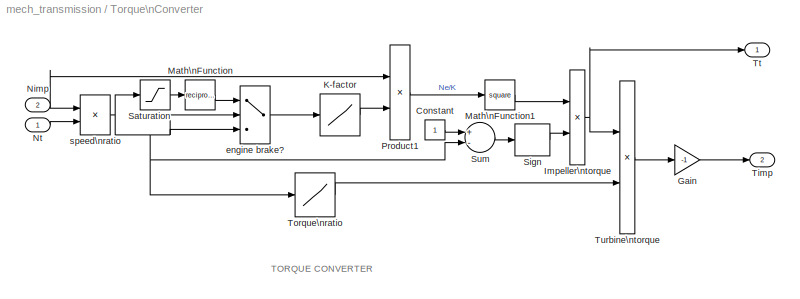
BLOCK [SubSystem] Torque\nConverter
  MaskCallbackString = ||
  MaskDescription = torque converter
  MaskDisplay = plot([cos([90:10:450]*pi/180),.63*cos([90:10:450]*pi/180),.63*cos([90:10:240]*pi/180),cos([240:10:300]*pi/180),.63*cos([300]*pi/180)],[sin([90:10:450]*pi/180),.63*sin([90:10:450]*pi/180)+.1,.63*sin([90:10:240]*pi/180)+.1,sin([240:10:300]*pi/180),.63*sin([300]*pi/180)+.1])
  MaskEnableString = on,on,on
  MaskHelp = Torque converter input and output torques are computed as a function of the input and output speeds
  MaskIconFrame = on
  MaskIconOpaque = on
  MaskIconRotate = none
  MaskIconUnits = autoscale
  MaskPromptString = speed ratio | K factor | torque ratio
  MaskStyleString = edit,edit,edit
  MaskTabNameString = ,,
  MaskToolTipString = on,on,on
  MaskTunableValueString = on,on,on
  MaskType = torque converter
  MaskValueString = converter_data(:,1)|converter_data(:,2)|converter_data(:,3)
  MaskVarAliasString = ,,
  MaskVariables = speedratio=@1;Kfactor=@2;Torkratio=@3;
  MaskVisibilityString = on,on,on
  MinAlgLoopOccurrences = off
  Ports = [2, 2]
  RTWSystemCode = Auto
  ShowPortLabels = off
  TreatAsAtomicUnit = off
BLOCK [Constant] Torque\nConverter/Constant
BLOCK [Gain] Torque\nConverter/Gain
  Gain = -1
BLOCK [Product] Torque\nConverter/Impeller\ntorque
  Ports = [2, 1]
  RndMeth = Floor
BLOCK [Lookup] Torque\nConverter/K-factor
  DialogController = Simulink.DDGSource
  InputValues = speedratio
  OutputValues = Kfactor
BLOCK [Math] Torque\nConverter/Math\nFunction
  Operator = reciprocal
  Ports = [1, 1]
BLOCK [Math] Torque\nConverter/Math\nFunction1
  Operator = square
  Ports = [1, 1]
BLOCK [Inport] Torque\nConverter/Nimp
  IconDisplay = Port number
  LatchInput = off
  Port = 2
BLOCK [Inport] Torque\nConverter/Nt
  IconDisplay = Port number
  LatchInput = off
  Port = 1
BLOCK [Product] Torque\nConverter/Product1
  Inputs = **
  Ports = [2, 1]
  RndMeth = Floor
BLOCK [Saturate] Torque\nConverter/Saturation
  LowerLimit = 1
  UpperLimit = Inf
  ZeroCross = off
BLOCK [Signum] Torque\nConverter/Sign
  ZeroCross = off
BLOCK [Sum] Torque\nConverter/Sum
  Inputs = +-
  Ports = [2, 1]
BLOCK [Outport] Torque\nConverter/Timp
  BusOutputAsStruct = off
  IconDisplay = Port number
  InitialOutput = 0
  Port = 2
BLOCK [Lookup] Torque\nConverter/Torque\nratio
  DialogController = Simulink.DDGSource
  InputValues = speedratio
  OutputValues = Torkratio
BLOCK [Outport] Torque\nConverter/Tt
  BusOutputAsStruct = off
  IconDisplay = Port number
  InitialOutput = 0
BLOCK [Product] Torque\nConverter/Turbine\ntorque
  Ports = [2, 1]
  RndMeth = Floor
BLOCK [Switch] Torque\nConverter/engine brake?
  SaturateOnIntegerOverflow = off
  Threshold = 1
  ZeroCross = off
BLOCK [Product] Torque\nConverter/speed\nratio
  Inputs = /*
  Ports = [2, 1]
  RndMeth = Floor
BLOCK [SubSystem] Turbine
  MaskCallbackString = |
  MaskEnableString = on,on
  MaskIconFrame = on
  MaskIconOpaque = on
  MaskIconRotate = none
  MaskIconUnits = autoscale
  MaskPromptString = Turbine inertia (kg.m^2)|Initial angular velocity (rad/s)
  MaskStyleString = edit,edit
  MaskTabNameString = ,
  MaskToolTipString = on,on
  MaskTunableValueString = on,on
  MaskValueString = Iint|1
  MaskVarAliasString = ,
  MaskVariables = I=@1;V=@2;
  MaskVisibilityString = on,on
  MinAlgLoopOccurrences = off
  Ports = [1, 1, 0, 0, 0, 0, 2]
  RTWSystemCode = Auto
  TreatAsAtomicUnit = off
BLOCK [Reference] Turbine/Ground  REF=mblibv1/Bodies/Ground
  ClassName = Ground
  CoordPosition = [0 0 0]
  CoordPositionUnits = m
  DialogClass = GroundBlock
  LeftPortType = env
  MachineId = [0 0]
  Opaque = on
  PhysicalDomain = Mechanical
  Ports = [0, 0, 0, 0, 0, 0, 1]
  RightPortType = workingframe
  ShowEnvPort = off
  ShowPortLabels = on
  SourceBlock = mblibv1/Bodies/Ground
  SourceType = msb
  StateVectorMgrId = -1
  UserData = DataTag7
  UserDataPersistent = on
BLOCK [Reference] Turbine/Impellerasc1  REF=mblibv1/Joints/Revolute
  ClassName = Joint
  CutJoint = off
  Description = Mechanical Blockset
  DialogClass = JointBlock
  LConnTagsString = __newl0|SA1
  LeftPortType = blob
  MarkAsCut = off
  NumSAPorts = 2
  PhysicalDomain = mechanical
  Ports = [0, 0, 0, 0, 0, 2, 2]
  PrimitiveProps = R1$WORLD$[0 0 1]$revolute
  Primitives = revolute
  RConnTagsString = __newr0|SA1
  RightPortType = blob
  SourceBlock = mblibv1/Joints/Revolute
  SourceType = msb
  SubClassName = Unknown
  Tag = Factory generic
BLOCK [Reference] Turbine/Joint Initial Condition1  REF=mblibv1/Sensors & \nActuators/Joint Initial Condition
  AngleUnits = rad
  ArcVelocityUnits = rad/s
  ClassName = InitialCondition
  CoordPosition = 0.0
  CoordPositionUnits = m
  Description = Mechanical Blockset
  DialogClass = InitialConditionBlock
  InitialConditions = P1$false$0$m$rad$0$m/s$rad/s#P2$false$0$m$rad$0$m/s$rad/s#P3$false$0$m$rad$0$m/s$rad/s#R1$true$0.0$m$rad$V$m/s$rad/s#R2$false$0$m$rad$0$m/s$rad/s#R3$false$0$m$rad$0$m/s$rad/s#S$false$0$m$rad$0$m/s$rad/s
  Opaque = on
  PhysicalDomain = Mechanical
  Ports = [0, 0, 0, 0, 0, 0, 1]
  Primitive = R1
  ShowPortLabels = on
  SourceBlock = mblibv1/Sensors & \nActuators/Joint Initial Condition
  SourceType = msb
  Velocity = V
  VelocityUnits = m/s
BLOCK [Reference] Turbine/Joint Sensor1  REF=mblibv1/Sensors & \nActuators/Joint Sensor
  Acceleration = off
  AccelerationUnits = m/s^2
  ActiveIO = on
  Angle = off
  AngleUnits = deg
  ArcAcceleration = off
  ArcAccelerationUnits = deg/s^2
  ArcVelocity = on
  ArcVelocityUnits = rad/s
  ClassName = JointSensor
  CoordPosition = on
  CoordPositionUnits = m
  Description = Mechanical Blockset
  DialogClass = MechanicalSensorBlock
  Force = off
  ForceUnits = N
  Muxed = off
  Opaque = on
  OutputVector = [ 1 ]
  PhysicalDomain = Mechanical
  PortType = blob
  Ports = [0, 1, 0, 0, 0, 1]
  Pose = off
  Primitive = R1
  Quaternion = on
  QuaternionDDT = off
  QuaternionDT = off
  QuaternionUnits = off
  ReactionForce = off
  ReactionForceUnits = N
  ReactionMoment = off
  ReactionMomentUnits = N-m
  ReactionReferenceFrame = Absolute (World)
  ReactionSensedSide = Base
  ReferenceFrame = Absolute (INERTIAL)
  ShowPortLabels = on
  SourceBlock = mblibv1/Sensors & \nActuators/Joint Sensor
  SourceType = msb
  Torque = off
  TorqueUnits = N-m
  Velocity = off
  VelocityUnits = m/s
  Width = 1
BLOCK [Outport] Turbine/Speed (rad//s)
  BusOutputAsStruct = off
  IconDisplay = Port number
BLOCK [SubSystem] Turbine/Torbine torque
  MinAlgLoopOccurrences = off
  Ports = [1, 0, 0, 0, 0, 0, 1]
  RTWSystemCode = Auto
  TreatAsAtomicUnit = off
BLOCK [Reference] Turbine/Torbine torque/Body Actuator  REF=mblibv1/Sensors & \nActuators/Body Actuator
  AccelerationUnits = m/s^2
  ActiveIO = on
  ActuationStyle = Force
  Angle = off
  AngleUnits = deg
  ArcAccelerationUnits = deg/s^2
  ArcVelocityUnits = deg/s
  ClassName = BodyActuatorForceTorque
  CoordPosition = on
  CoordPositionUnits = m
  Description = Mechanical Blockset
  DialogClass = MechanicalActuatorBlock
  Force = off
  ForceUnits = N
  Opaque = on
  PhysicalDomain = Mechanical
  PortType = blob
  Ports = [1, 0, 0, 0, 0, 0, 1]
  ReferenceFrame = Absolute (World)
  ShowPortLabels = on
  SourceBlock = mblibv1/Sensors & \nActuators/Body Actuator
  SourceType = msb
  Torque = on
  TorqueUnits = N-m
  VelocityUnits = m/s
  Width = 3
BLOCK [Constant] Turbine/Torbine torque/Constant
  Value = 0
BLOCK [Mux] Turbine/Torbine torque/Mux
  DisplayOption = bar
  Inputs = 3
  Ports = [3, 1]
BLOCK [Inport] Turbine/Torbine torque/Torque
  IconDisplay = Port number
  LatchInput = off
  Port = 1
BLOCK [PMIOPort] Turbine/Torbine torque/Turbine
  Port = 1
  Side = Right
BLOCK [Inport] Turbine/Torque (Nm)
  IconDisplay = Port number
  LatchInput = off
  Port = 1
BLOCK [Reference] Turbine/Turbine Inertia  REF=mblibv1/Bodies/Body
  CG = Left$CG$[0 0 0]$WORLD$WORLD$m$[0 0 0]$Euler X-Y-Z$deg$WORLD$false
  ClassName = Body
  Density = 1
  DensityUnits = kg/m^3
  DensityUse = false
  Description = Mechanical Blockset
  DialogClass = MechanicalBodyBlock
  Inertia = diag([0 0 I])
  InertiaUnits = kg*m^2
  LConnTagsString = CS1
  LeftPortType = workingframe
  Mass = 0
  MassUnits = kg
  PhysicalDomain = mechanical
  Ports = [0, 0, 0, 0, 0, 1, 3]
  RConnTagsString = CS2|CS4|CS3
  RightPortType = workingframe
  Shape = Cylinder
  ShapeDims = [1 1]
  ShapeUnits = m
  ShapeUse = false
  SourceBlock = mblibv1/Bodies/Body
  SourceType = msb
  SubClassName = Unknown
  Tag = Factory generic
  WorkingFrames = Left$CS1$[0 0 0]$CG$CG$m$[0 0 0]$Euler X-Y-Z$deg$WORLD$true#Right$CS2$[0 0 0]$CG$CG$m$[0 0 0]$Euler X-Y-Z$deg$WORLD$true#Right$CS4$[0 0 0]$CG$CG$m$[0 0 0]$Euler X-Y-Z$deg$WORLD$true#Right$CS3$[0 0 0]$CG$CG$m$[0 0 0]$Euler X-Y-Z$deg$WORLD$true
BLOCK [PMIOPort] Turbine/Turbine connect #1
  Port = 1
  Side = Right
  Tag = PMCPort
BLOCK [PMIOPort] Turbine/Turbine connect #2
  Port = 2
  Side = Right
  Tag = PMCPort
BLOCK [Scope] Vehicle
  DataFormat = StructureWithTime
  NumInputPorts = 2
  Ports = [2]
  SaveName = ScopeData1
  TimeRange = 100
  YMax = 160~5
  YMin = 0~1
BLOCK [SubSystem] \nShift_logic
  MaskDescription = Stateflow diagram
  MaskDisplay = plot(sf('Private','sfblk','xIcon'),sf('Private','sfblk','yIcon'));text(0.5,0,sf('Private', 'sfblk', 'tIcon'),'HorizontalAl','Center','VerticalAl','Bottom');
  MaskIconFrame = off
  MaskIconOpaque = off
  MaskIconRotate = none
  MaskIconUnits = autoscale
  MaskSelfModifiable = on
  MaskType = Stateflow
  MinAlgLoopOccurrences = off
  Ports = [3, 2]
  RTWSystemCode = Auto
  TreatAsAtomicUnit = off
BLOCK [Demux] \nShift_logic/ Demux 
  Outputs = 1
  Ports = [1, 1]
BLOCK [S-Function] \nShift_logic/ SFunction 
  FunctionName = sf_sfun
  Parameters = Tconfirm
  PortCounts = [3 2]
  Ports = [3, 2]
  Tag = Stateflow S-Function mech_transmission 2
BLOCK [Outport] \nShift_logic/compute_thresholds
  BusOutputAsStruct = off
  IconDisplay = Port number
  Port = 2
BLOCK [Inport] \nShift_logic/down_threshold
  IconDisplay = Port number
  LatchInput = off
  Port = 1
BLOCK [Outport] \nShift_logic/gear
  BusOutputAsStruct = off
  IconDisplay = Port number
BLOCK [Inport] \nShift_logic/up_threshold
  IconDisplay = Port number
  LatchInput = off
  Port = 2
BLOCK [Inport] \nShift_logic/vehicle_speed
  IconDisplay = Port number
  LatchInput = off
  Port = 3
ANNOTATION (root): Automobile Transmission
ANNOTATION Gearbox: Gear UD Low 24 34\n1 x x \n2 x x \n 3 x x \n 4 x x
ANNOTATION Torque\nConverter: TORQUE CONVERTER
LINE Engine\nmap/Cols:1 -> Engine\nmap/Look-Up\nTable (2-D):2
LINE Engine\nmap/Look-Up\nTable (2-D):1 -> Engine\nmap/Out1:1
LINE Engine\nmap/Rows:1 -> Engine\nmap/Look-Up\nTable (2-D):1
LINE Engine\nmap:1 -> Sum1:1
LINE Final drive and vehicle/Constant:1 -> Final drive and vehicle/Relational\nOperator:2
LINE Final drive and vehicle/Joint Sensor:1 -> Final drive and vehicle/linear speed:1
LINE Final drive and vehicle/Relational\nOperator:1 -> Final drive and vehicle/Stop Simulation:1
LINE Final drive and vehicle/Sign:1 -> Final drive and vehicle/signed\nload:1
LINE Final drive and vehicle/Sum1:1 -> Final drive and vehicle/signed\nload:2
LINE Final drive and vehicle/Tbrk:1 -> Final drive and vehicle/Sum1:2
NET Final drive and vehicle/linear speed:1 -> Final drive and vehicle/Relational\nOperator:1, Final drive and vehicle/Sign:1, Final drive and vehicle/mps to kph:1, Final drive and vehicle/road load:1
NET Final drive and vehicle/mps to kph:1 -> Final drive and vehicle/Goto1:1, Final drive and vehicle/Kph:1
LINE Final drive and vehicle/road load:1 -> Final drive and vehicle/Sum1:1
LINE Final drive and vehicle/signed\nload:1 -> Final drive and vehicle/Joint Actuator:1
LINE Final drive and vehicle:1 -> \nShift_logic:3
LINE From1:1 -> Clutch24:2
LINE From2:1 -> Clutch34:1
LINE From3:1 -> Clutch34:2
LINE From4:1 -> ClutchUD:1
LINE From5:1 -> ClutchUD:2
LINE From6:1 -> Vehicle:1
LINE From7:1 -> Vehicle:2
LINE From8:1 -> ClutchLow:1
LINE From9:1 -> ClutchLow:2
LINE From:1 -> Clutch24:1
LINE Gearbox/24:1 -> Gearbox/Clutch 24:1
LINE Gearbox/34:1 -> Gearbox/Clutch 34:1
LINE Gearbox/Clutch 24/Abs:1 -> Gearbox/Clutch 24/mu:1
LINE Gearbox/Clutch 24/Constant:1 -> Gearbox/Clutch 24/Joint Stiction Actuator:1
LINE Gearbox/Clutch 24/Force:1 -> Gearbox/Clutch 24/Torque radius\n* # of surfaces:1
NET Gearbox/Clutch 24/Gain:1 -> Gearbox/Clutch 24/Joint Stiction Actuator:3, Gearbox/Clutch 24/Product1:2
NET Gearbox/Clutch 24/Joint Sensor:1 -> Gearbox/Clutch 24/Abs:1, Gearbox/Clutch 24/Goto:1, Gearbox/Clutch 24/Sign:1
NET Gearbox/Clutch 24/Joint Sensor:2 -> Gearbox/Clutch 24/Goto1:1, Gearbox/Clutch 24/Joint Stiction Actuator:4
LINE Gearbox/Clutch 24/Product1:1 -> Gearbox/Clutch 24/Joint Stiction Actuator:2
NET Gearbox/Clutch 24/Product:1 -> Gearbox/Clutch 24/Gain:1, Gearbox/Clutch 24/Joint Stiction Actuator:5
LINE Gearbox/Clutch 24/Sign:1 -> Gearbox/Clutch 24/Product1:1
LINE Gearbox/Clutch 24/Torque radius\n* # of surfaces:1 -> Gearbox/Clutch 24/Product:2
LINE Gearbox/Clutch 24/mu:1 -> Gearbox/Clutch 24/Product:1
LINE Gearbox/Clutch 34/Abs:1 -> Gearbox/Clutch 34/mu:1
LINE Gearbox/Clutch 34/Constant:1 -> Gearbox/Clutch 34/Joint Stiction Actuator:1
LINE Gearbox/Clutch 34/Force:1 -> Gearbox/Clutch 34/Torque radius\n* # of surfaces:1
NET Gearbox/Clutch 34/Gain:1 -> Gearbox/Clutch 34/Joint Stiction Actuator:3, Gearbox/Clutch 34/Product1:2
NET Gearbox/Clutch 34/Joint Sensor:1 -> Gearbox/Clutch 34/Abs:1, Gearbox/Clutch 34/Goto1:1, Gearbox/Clutch 34/Sign:1
NET Gearbox/Clutch 34/Joint Sensor:2 -> Gearbox/Clutch 34/Goto2:1, Gearbox/Clutch 34/Joint Stiction Actuator:4
LINE Gearbox/Clutch 34/Product1:1 -> Gearbox/Clutch 34/Joint Stiction Actuator:2
NET Gearbox/Clutch 34/Product:1 -> Gearbox/Clutch 34/Gain:1, Gearbox/Clutch 34/Joint Stiction Actuator:5
LINE Gearbox/Clutch 34/Sign:1 -> Gearbox/Clutch 34/Product1:1
LINE Gearbox/Clutch 34/Torque radius\n* # of surfaces:1 -> Gearbox/Clutch 34/Product:2
LINE Gearbox/Clutch 34/mu:1 -> Gearbox/Clutch 34/Product:1
LINE Gearbox/Clutch Low/Abs:1 -> Gearbox/Clutch Low/mu:1
LINE Gearbox/Clutch Low/Constant:1 -> Gearbox/Clutch Low/Joint Stiction Actuator:1
LINE Gearbox/Clutch Low/Force:1 -> Gearbox/Clutch Low/Torque radius\n* # of surfaces:1
NET Gearbox/Clutch Low/Gain:1 -> Gearbox/Clutch Low/Joint Stiction Actuator:3, Gearbox/Clutch Low/Product1:2
NET Gearbox/Clutch Low/Joint Sensor:1 -> Gearbox/Clutch Low/Abs:1, Gearbox/Clutch Low/Goto1:1, Gearbox/Clutch Low/Sign:1
NET Gearbox/Clutch Low/Joint Sensor:2 -> Gearbox/Clutch Low/Goto2:1, Gearbox/Clutch Low/Joint Stiction Actuator:4
LINE Gearbox/Clutch Low/Product1:1 -> Gearbox/Clutch Low/Joint Stiction Actuator:2
NET Gearbox/Clutch Low/Product:1 -> Gearbox/Clutch Low/Gain:1, Gearbox/Clutch Low/Joint Stiction Actuator:5
LINE Gearbox/Clutch Low/Sign:1 -> Gearbox/Clutch Low/Product1:1
LINE Gearbox/Clutch Low/Torque radius\n* # of surfaces:1 -> Gearbox/Clutch Low/Product:2
LINE Gearbox/Clutch Low/mu:1 -> Gearbox/Clutch Low/Product:1
LINE Gearbox/Clutch UD/Abs:1 -> Gearbox/Clutch UD/mu:1
LINE Gearbox/Clutch UD/Constant:1 -> Gearbox/Clutch UD/Joint Stiction Actuator:1
LINE Gearbox/Clutch UD/Force:1 -> Gearbox/Clutch UD/Torque radius\n* # of surfaces:1
NET Gearbox/Clutch UD/Gain:1 -> Gearbox/Clutch UD/Joint Stiction Actuator:3, Gearbox/Clutch UD/Product1:2
NET Gearbox/Clutch UD/Joint Sensor:1 -> Gearbox/Clutch UD/Abs:1, Gearbox/Clutch UD/Goto1:1, Gearbox/Clutch UD/Sign:1
NET Gearbox/Clutch UD/Joint Sensor:2 -> Gearbox/Clutch UD/Goto2:1, Gearbox/Clutch UD/Joint Stiction Actuator:4
LINE Gearbox/Clutch UD/Product1:1 -> Gearbox/Clutch UD/Joint Stiction Actuator:2
NET Gearbox/Clutch UD/Product:1 -> Gearbox/Clutch UD/Gain:1, Gearbox/Clutch UD/Joint Stiction Actuator:5
LINE Gearbox/Clutch UD/Sign:1 -> Gearbox/Clutch UD/Product1:1
LINE Gearbox/Clutch UD/Torque radius\n* # of surfaces:1 -> Gearbox/Clutch UD/Product:2
LINE Gearbox/Clutch UD/mu:1 -> Gearbox/Clutch UD/Product:1
NET Gearbox/Gear:1 -> Gearbox/24:1, Gearbox/34:1, Gearbox/Goto2:1, Gearbox/Low:1, Gearbox/UD:1
LINE Gearbox/Low:1 -> Gearbox/Clutch Low:1
LINE Gearbox/UD:1 -> Gearbox/Clutch UD:1
LINE Impeller/Constant:1 -> Impeller/Relational\nOperator:2
NET Impeller/Joint Sensor2:1 -> Impeller/Relational\nOperator:1, Impeller/Speed (rad//s):1
LINE Impeller/Relational\nOperator:1 -> Impeller/Stop Simulation:1
LINE Impeller/Torque (Nm):1 -> Impeller/Joint Actuator1:1
NET Impeller:1 -> Engine\nmap:1, Torque\nConverter:2
NET Shift points/Gear:1 -> Shift points/downshifts:2, Shift points/upshifts:2
NET Shift points/Throttle:1 -> Shift points/downshifts:1, Shift points/upshifts:1
LINE Shift points/downshifts:1 -> Shift points/Down_threshold:1
LINE Shift points/upshifts:1 -> Shift points/Up_threshold:1
LINE Shift points:1 -> \nShift_logic:1
LINE Shift points:2 -> \nShift_logic:2
LINE Step:1 -> Final drive and vehicle:1
LINE Sum1:1 -> Impeller:1
NET Throttle\nschedule:1 -> Engine\nmap:2, Shift points:2
LINE Torque\nConverter/Constant:1 -> Torque\nConverter/Sum:1
LINE Torque\nConverter/Gain:1 -> Torque\nConverter/Timp:1
NET Torque\nConverter/Impeller\ntorque:1 -> Torque\nConverter/Tt:1, Torque\nConverter/Turbine\ntorque:1
LINE Torque\nConverter/K-factor:1 -> Torque\nConverter/Product1:2
LINE Torque\nConverter/Math\nFunction1:1 -> Torque\nConverter/Impeller\ntorque:1
LINE Torque\nConverter/Math\nFunction:1 -> Torque\nConverter/engine brake?:1
NET Torque\nConverter/Nimp:1 -> Torque\nConverter/Product1:1, Torque\nConverter/speed\nratio:1
LINE Torque\nConverter/Nt:1 -> Torque\nConverter/speed\nratio:2
LINE Torque\nConverter/Product1:1 -> Torque\nConverter/Math\nFunction1:1
LINE Torque\nConverter/Saturation:1 -> Torque\nConverter/Math\nFunction:1
LINE Torque\nConverter/Sign:1 -> Torque\nConverter/Impeller\ntorque:2
LINE Torque\nConverter/Sum:1 -> Torque\nConverter/Sign:1
LINE Torque\nConverter/Torque\nratio:1 -> Torque\nConverter/Turbine\ntorque:2
LINE Torque\nConverter/Turbine\ntorque:1 -> Torque\nConverter/Gain:1
LINE Torque\nConverter/engine brake?:1 -> Torque\nConverter/K-factor:1
NET Torque\nConverter/speed\nratio:1 -> Torque\nConverter/Saturation:1, Torque\nConverter/Sum:2, Torque\nConverter/Torque\nratio:1, Torque\nConverter/engine brake?:2, Torque\nConverter/engine brake?:3
LINE Torque\nConverter:1 -> Turbine:1
LINE Torque\nConverter:2 -> Sum1:2
LINE Turbine/Joint Sensor1:1 -> Turbine/Speed (rad//s):1
NET Turbine/Torbine torque/Constant:1 -> Turbine/Torbine torque/Mux:1, Turbine/Torbine torque/Mux:2
LINE Turbine/Torbine torque/Mux:1 -> Turbine/Torbine torque/Body Actuator:1
LINE Turbine/Torbine torque/Torque:1 -> Turbine/Torbine torque/Mux:3
LINE Turbine/Torque (Nm):1 -> Turbine/Torbine torque:1
LINE Turbine:1 -> Torque\nConverter:1
LINE \nShift_logic/ Demux :1 -> \nShift_logic/compute_thresholds:1
LINE \nShift_logic/ SFunction :1 -> \nShift_logic/ Demux :1
LINE \nShift_logic/ SFunction :2 -> \nShift_logic/gear:1
LINE \nShift_logic/down_threshold:1 -> \nShift_logic/ SFunction :1
LINE \nShift_logic/up_threshold:1 -> \nShift_logic/ SFunction :2
LINE \nShift_logic/vehicle_speed:1 -> \nShift_logic/ SFunction :3
NET \nShift_logic:1 -> Gearbox:1, Shift points:1
LINE \nShift_logic:2 -> Shift points:trigger
PLINE Final drive and vehicle/Body:LConn1 -- Final drive and vehicle/Weld:LConn1
PLINE Final drive and vehicle/Body:LConn2 -- Final drive and vehicle/Gear Constraint:RConn1
PLINE Final drive and vehicle/Body:RConn1 -- Final drive and vehicle/Revolute:RConn1
PLINE Final drive and vehicle/Gear Constraint:LConn1 -- Final drive and vehicle/Vehicle inertia:LConn1
PLINE Final drive and vehicle/Ground2:RConn1 -- Final drive and vehicle/Revolute1:LConn1
PLINE Final drive and vehicle/Ground:LConn1 -- Final drive and vehicle/Machine\nEnvironment:RConn1
PLINE Final drive and vehicle/Ground:RConn1 -- Final drive and vehicle/Revolute:LConn1
PLINE Final drive and vehicle/Joint Actuator:RConn1 -- Final drive and vehicle/Revolute1:RConn2
PLINE Final drive and vehicle/Joint Sensor:LConn1 -- Final drive and vehicle/Revolute1:LConn2
PLINE Final drive and vehicle/Output shaft:RConn1 -- Final drive and vehicle/Weld:RConn1
PLINE Final drive and vehicle/Revolute1:RConn1 -- Final drive and vehicle/Vehicle inertia:RConn1
PLINE Final drive and vehicle:LConn1 -- Gearbox:RConn1
PLINE Gearbox/Clutch 24/Clutch 24:LConn1 -- Gearbox/Clutch 24/Ground:RConn1
PLINE Gearbox/Clutch 24/Clutch 24:LConn2 -- Gearbox/Clutch 24/Joint Stiction Actuator:RConn1
PLINE Gearbox/Clutch 24/Clutch 24:RConn1 -- Gearbox/Clutch 24/Clutch:RConn1
PLINE Gearbox/Clutch 24/Clutch 24:RConn2 -- Gearbox/Clutch 24/Joint Sensor:LConn1
PLINE Gearbox/Clutch 24:RConn1 -- Gearbox/Input Planetary Set:RConn2
PLINE Gearbox/Clutch 34/Clutch 34:LConn1 -- Gearbox/Clutch 34/Input shaft:RConn1
PLINE Gearbox/Clutch 34/Clutch 34:LConn2 -- Gearbox/Clutch 34/Joint Stiction Actuator:RConn1
PLINE Gearbox/Clutch 34/Clutch 34:RConn1 -- Gearbox/Clutch 34/Clutch:RConn1
PLINE Gearbox/Clutch 34/Clutch 34:RConn2 -- Gearbox/Clutch 34/Joint Sensor:LConn1
PLINE Gearbox/Clutch 34:LConn1 -- Gearbox/Turbine connect#1:RConn1
PLINE Gearbox/Clutch 34:RConn1 -- Gearbox/Input Planetary Set:RConn3
PLINE Gearbox/Clutch Low/Clutch Low:LConn1 -- Gearbox/Clutch Low/Ground:RConn1
PLINE Gearbox/Clutch Low/Clutch Low:LConn2 -- Gearbox/Clutch Low/Joint Stiction Actuator:RConn1
PLINE Gearbox/Clutch Low/Clutch Low:LConn3 -- Gearbox/Clutch Low/Joint Initial Condition:RConn1
PLINE Gearbox/Clutch Low/Clutch Low:RConn1 -- Gearbox/Clutch Low/Clutch:RConn1
PLINE Gearbox/Clutch Low/Clutch Low:RConn2 -- Gearbox/Clutch Low/Joint Sensor:LConn1
PLINE Gearbox/Clutch Low:RConn1 -- Gearbox/Output Planetary Set:RConn3
PLINE Gearbox/Clutch UD/Clutch UD:LConn1 -- Gearbox/Clutch UD/Input shaft:RConn1
PLINE Gearbox/Clutch UD/Clutch UD:LConn2 -- Gearbox/Clutch UD/Joint Stiction Actuator:RConn1
PLINE Gearbox/Clutch UD/Clutch UD:LConn3 -- Gearbox/Clutch UD/Joint Initial Condition:RConn1
PLINE Gearbox/Clutch UD/Clutch UD:RConn1 -- Gearbox/Clutch UD/Clutch:RConn1
PLINE Gearbox/Clutch UD/Clutch UD:RConn2 -- Gearbox/Clutch UD/Joint Sensor:LConn1
PLINE Gearbox/Clutch UD:LConn1 -- Gearbox/Turbine connect#2:RConn1
PLINE Gearbox/Clutch UD:RConn1 -- Gearbox/Output Planetary Set:RConn2
PLINE Gearbox/Input Planetary Set/Carrier :RConn1 -- Gearbox/Input Planetary Set/Carrier:LConn2
PLINE Gearbox/Input Planetary Set/Carrier:LConn1 -- Gearbox/Input Planetary Set/Revolute:RConn1
PLINE Gearbox/Input Planetary Set/Carrier:LConn3 -- Gearbox/Input Planetary Set/Clutch 34:RConn1
PLINE Gearbox/Input Planetary Set/Carrier:RConn1 -- Gearbox/Input Planetary Set/Revolute2:LConn1
PLINE Gearbox/Input Planetary Set/Carrier:RConn2 -- Gearbox/Input Planetary Set/Revolute1:LConn1
PLINE Gearbox/Input Planetary Set/Carrier:RConn3 -- Gearbox/Input Planetary Set/Revolute3:LConn1
PLINE Gearbox/Input Planetary Set/Gear Constraint1:LConn1 -- Gearbox/Input Planetary Set/Sun:RConn1
PLINE Gearbox/Input Planetary Set/Gear Constraint1:RConn1 -- Gearbox/Input Planetary Set/Planet:RConn2
PLINE Gearbox/Input Planetary Set/Gear Constraint:LConn1 -- Gearbox/Input Planetary Set/Ring:RConn2
PLINE Gearbox/Input Planetary Set/Gear Constraint:RConn1 -- Gearbox/Input Planetary Set/Planet:RConn1
PLINE Gearbox/Input Planetary Set/Ground:RConn1 -- Gearbox/Input Planetary Set/Revolute:LConn1
PLINE Gearbox/Input Planetary Set/Planet:LConn1 -- Gearbox/Input Planetary Set/Revolute1:RConn1
PLINE Gearbox/Input Planetary Set/Revolute2:RConn1 -- Gearbox/Input Planetary Set/Ring:LConn1
PLINE Gearbox/Input Planetary Set/Revolute3:RConn1 -- Gearbox/Input Planetary Set/Sun:LConn1
PLINE Gearbox/Input Planetary Set/Ring :RConn1 -- Gearbox/Input Planetary Set/Ring:RConn1
PLINE Gearbox/Input Planetary Set/Sun  :RConn1 -- Gearbox/Input Planetary Set/Sun:RConn2
PLINE Gearbox/Input Planetary Set:LConn1 -- Gearbox/Weld2:LConn1
PLINE Gearbox/Input Planetary Set:RConn1 -- Gearbox/Weld1:LConn1
PLINE Gearbox/Output Planetary Set/Carrier :RConn1 -- Gearbox/Output Planetary Set/Carrier:LConn2
PLINE Gearbox/Output Planetary Set/Carrier:LConn1 -- Gearbox/Output Planetary Set/Revolute:RConn1
PLINE Gearbox/Output Planetary Set/Carrier:LConn3 -- Gearbox/Output Planetary Set/Output shaft:RConn1
PLINE Gearbox/Output Planetary Set/Carrier:RConn1 -- Gearbox/Output Planetary Set/Revolute2:LConn1
PLINE Gearbox/Output Planetary Set/Carrier:RConn2 -- Gearbox/Output Planetary Set/Revolute1:LConn1
PLINE Gearbox/Output Planetary Set/Carrier:RConn3 -- Gearbox/Output Planetary Set/Revolute3:LConn1
PLINE Gearbox/Output Planetary Set/Gear Constraint1:LConn1 -- Gearbox/Output Planetary Set/Sun:RConn1
PLINE Gearbox/Output Planetary Set/Gear Constraint1:RConn1 -- Gearbox/Output Planetary Set/Planet:RConn2
PLINE Gearbox/Output Planetary Set/Gear Constraint:LConn1 -- Gearbox/Output Planetary Set/Ring:RConn3
PLINE Gearbox/Output Planetary Set/Gear Constraint:RConn1 -- Gearbox/Output Planetary Set/Planet:RConn1
PLINE Gearbox/Output Planetary Set/Ground1:RConn1 -- Gearbox/Output Planetary Set/Revolute:LConn1
PLINE Gearbox/Output Planetary Set/Low:RConn1 -- Gearbox/Output Planetary Set/Ring:RConn2
PLINE Gearbox/Output Planetary Set/Planet:LConn1 -- Gearbox/Output Planetary Set/Revolute1:RConn1
PLINE Gearbox/Output Planetary Set/Revolute2:RConn1 -- Gearbox/Output Planetary Set/Ring:LConn1
PLINE Gearbox/Output Planetary Set/Revolute3:RConn1 -- Gearbox/Output Planetary Set/Sun:LConn1
PLINE Gearbox/Output Planetary Set/Ring :RConn1 -- Gearbox/Output Planetary Set/Ring:RConn1
PLINE Gearbox/Output Planetary Set/Sun :RConn1 -- Gearbox/Output Planetary Set/Sun:RConn2
PLINE Gearbox/Output Planetary Set:LConn1 -- Gearbox/Weld1:RConn1
PLINE Gearbox/Output Planetary Set:LConn2 -- Gearbox/Output shaft:RConn1
PLINE Gearbox/Output Planetary Set:RConn1 -- Gearbox/Weld2:RConn1
PLINE Gearbox:LConn1 -- Turbine:RConn2
PLINE Gearbox:LConn2 -- Turbine:RConn1
PLINE Impeller/Ground4:LConn1 -- Impeller/Machine\nEnvironment:RConn1
PLINE Impeller/Ground4:RConn1 -- Impeller/Impellerasc:LConn1
PLINE Impeller/Impeller Inertia:LConn1 -- Impeller/Impellerasc:RConn1
PLINE Impeller/Impellerasc:LConn2 -- Impeller/Joint Actuator1:RConn1
PLINE Impeller/Impellerasc:LConn3 -- Impeller/Joint Initial Condition:RConn1
PLINE Impeller/Impellerasc:RConn2 -- Impeller/Joint Sensor2:LConn1
PLINE Turbine/Ground:RConn1 -- Turbine/Impellerasc1:LConn1
PLINE Turbine/Impellerasc1:LConn2 -- Turbine/Joint Initial Condition1:RConn1
PLINE Turbine/Impellerasc1:RConn1 -- Turbine/Turbine Inertia:LConn1
PLINE Turbine/Impellerasc1:RConn2 -- Turbine/Joint Sensor1:LConn1
PLINE Turbine/Torbine torque/Body Actuator:RConn1 -- Turbine/Torbine torque/Turbine:RConn1
PLINE Turbine/Torbine torque:RConn1 -- Turbine/Turbine Inertia:RConn3
PLINE Turbine/Turbine Inertia:RConn1 -- Turbine/Turbine connect #1:RConn1
PLINE Turbine/Turbine Inertia:RConn2 -- Turbine/Turbine connect #2:RConn1
note: NET lines group one-source signal fan-out (src -> all destinations, sorted); 1:1 wires keep LINE
CHART \nShift_logic states=10 transitions=22
  STATE_LABEL 'gear_selection/\\n'
  STATE_LABEL 'gear_state'
  STATE_LABEL 'fourth/\\nentry: gear = 4;'
  STATE_LABEL 'third/\\nentry: gear = 3;'
  STATE_LABEL 'second/\\nentry: gear = 2;'
  STATE_LABEL 'first/\\nentry: gear = 1;'
  STATE_LABEL 'selection_state/\\nduring: compute_thresholds;'
  STATE_LABEL 'downshift_confirm/\\nentry: tdn = t;\\n'
  STATE_LABEL 'upshift_confirm/\\nentry: tup = t;\\n'
  STATE_LABEL 'steady_state'
